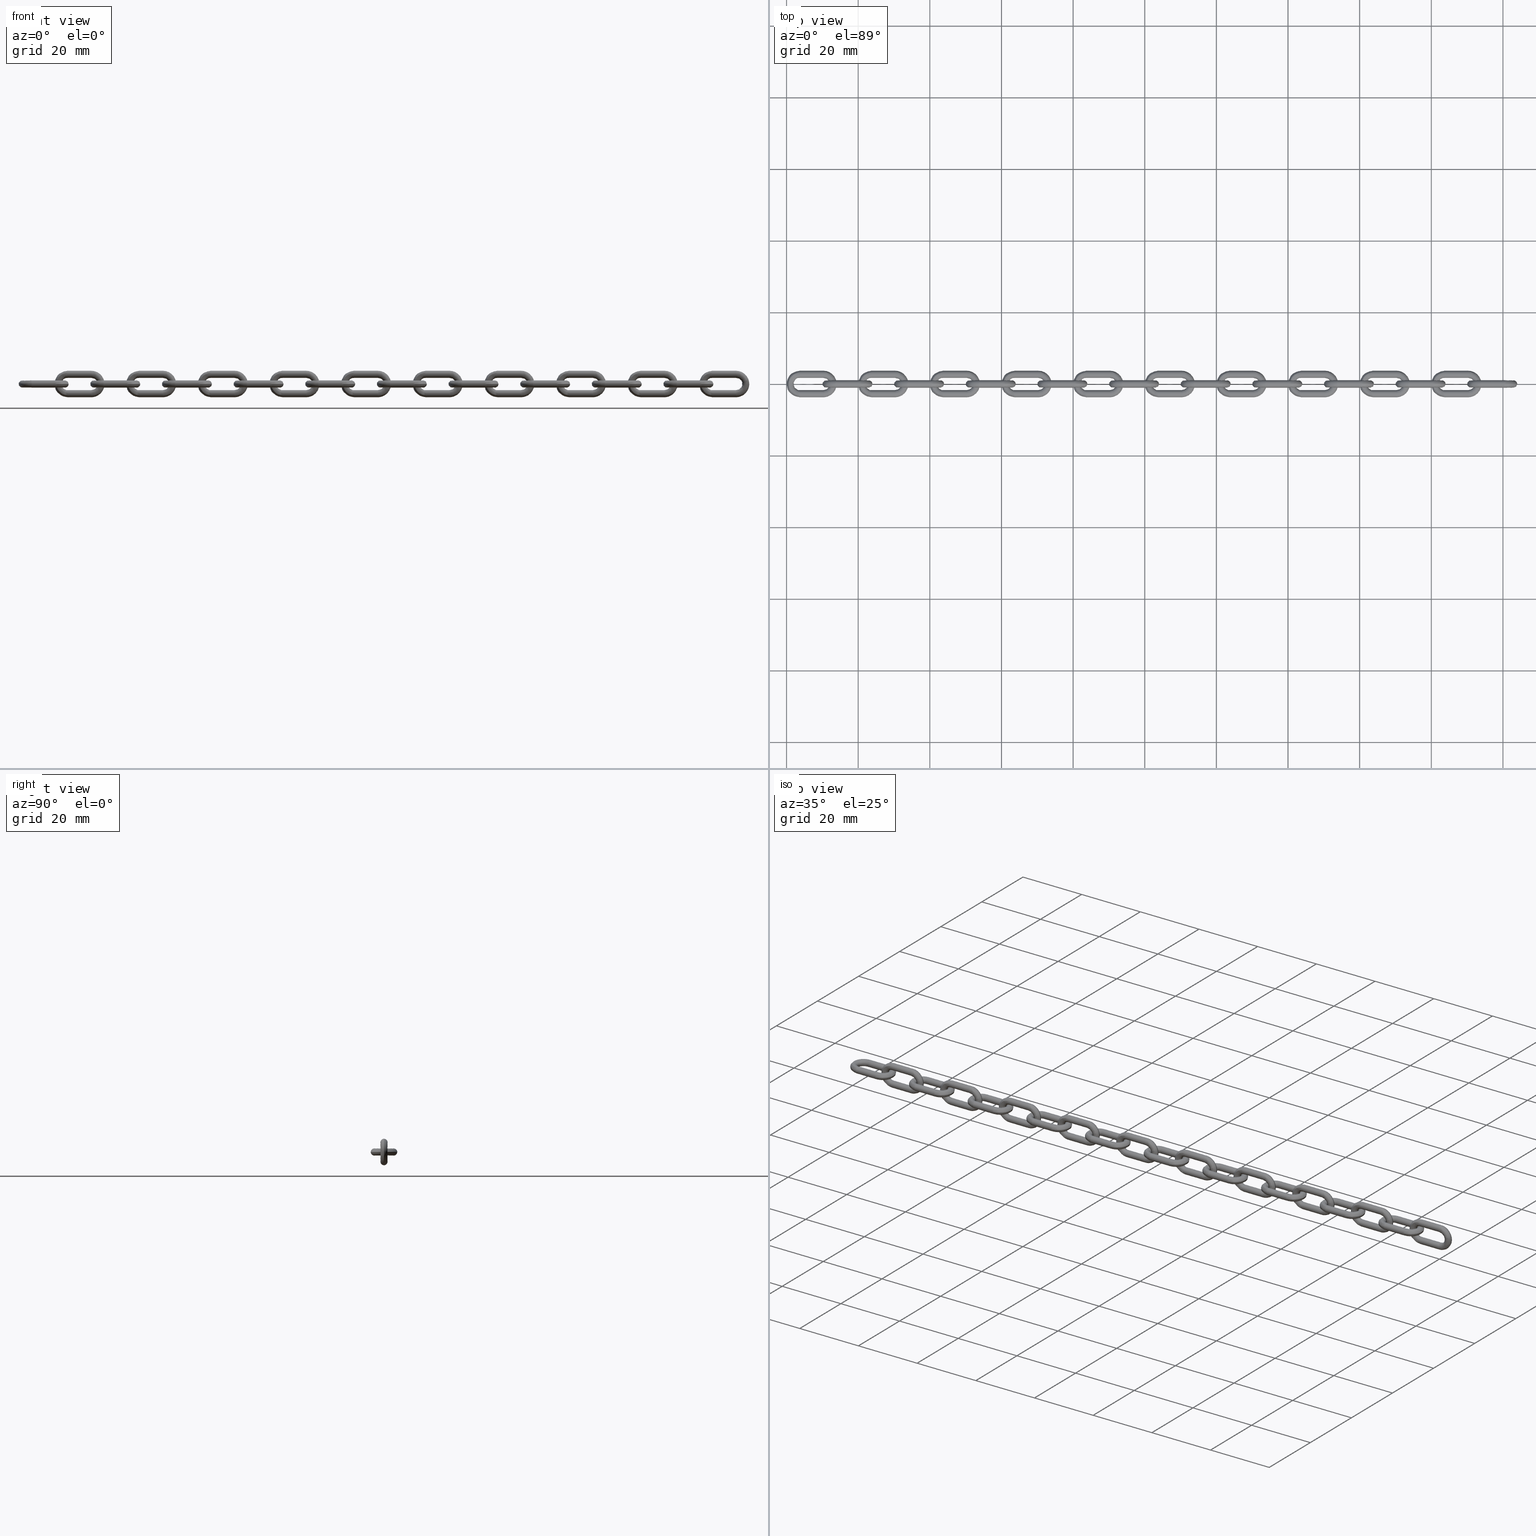
[diagram: canonical four-view strip — front | top / right | iso, engineering-drawing reading convention]
A machine part, canonical four-view strip (front | top / right | iso — engineering-drawing reading convention). The complete STEP part file that produces these views, byte-faithful:
ISO-10303-21;
HEADER;
/****************************************************************
 * Generated by software with PDE/Lib inside                    *
 * PDElib Version 4.4.1-0003, patched  Thursday August 19 11:58 *
 * International Technegroup Inc. (www.iti-oh.com)              *
 ****************************************************************/
FILE_DESCRIPTION((''),'2;1');
FILE_NAME('','2005-12-14T14:35:01',(''),(''),'','CADfix','');
FILE_SCHEMA(('AUTOMOTIVE_DESIGN'));
ENDSEC;
DATA;
#5=APPLICATION_CONTEXT('automotive design');
#6=APPLICATION_PROTOCOL_DEFINITION('Draft International Standard','automotive_design',1998,#5);
#7=PRODUCT_CONTEXT('None',#5,'mechanical');
#8=PRODUCT('chain','','None',(#7));
#9=PRODUCT_RELATED_PRODUCT_CATEGORY('part','description',(#8));
#10=PRODUCT_DEFINITION_FORMATION('None','None',#8);
#11=PRODUCT_DEFINITION_CONTEXT('part definition',#5,'design');
#12=PRODUCT_DEFINITION('None','None',#10,#11);
#18=(NAMED_UNIT(*)PLANE_ANGLE_UNIT()SI_UNIT($,.RADIAN.));
#19=DIMENSIONAL_EXPONENTS(0.0,0.0,0.0,0.0,0.0,0.0,0.0);
#20=PLANE_ANGLE_MEASURE_WITH_UNIT(PLANE_ANGLE_MEASURE(0.017453292500000),#18);
#24=(CONVERSION_BASED_UNIT('DEGREE',#20)NAMED_UNIT(#19)PLANE_ANGLE_UNIT());
#28=(NAMED_UNIT(*)SI_UNIT($,.STERADIAN.)SOLID_ANGLE_UNIT());
#32=(LENGTH_UNIT()NAMED_UNIT(*)SI_UNIT(.MILLI.,.METRE.));
#34=UNCERTAINTY_MEASURE_WITH_UNIT(LENGTH_MEASURE(0.001000000000000),#32,'DISTANCE_ACCURACY_VALUE','');
#36=(GEOMETRIC_REPRESENTATION_CONTEXT(3)GLOBAL_UNCERTAINTY_ASSIGNED_CONTEXT((#34))GLOBAL_UNIT_ASSIGNED_CONTEXT((#24,#28,#32))REPRESENTATION_CONTEXT('None','None'));
#37=AXIS2_PLACEMENT_3D('',#38,#39,#40);
#38=CARTESIAN_POINT('',(0.0,0.0,0.0));
#39=DIRECTION('',(0.0,0.0,1.0));
#40=DIRECTION('',(1.0,0.0,0.0));
#41=ADVANCED_BREP_SHAPE_REPRESENTATION('',(#37,#841,#881,#897,#913,#929,#945,#961,#977,#993,#1009,#1025,#1041,#1057,#1073,#1089,#1105,#1121,#1137,#1153,#1169,#1185),#36);
#42=PRODUCT_DEFINITION_SHAPE('','',#12);
#43=SHAPE_DEFINITION_REPRESENTATION(#42,#41);
#44=CARTESIAN_POINT('',(10.465000000059508,2.479622752936853,-0.975414716403678));
#45=CARTESIAN_POINT('',(10.465000000059510,2.202055588719912,-0.912703454725381));
#46=CARTESIAN_POINT('',(10.465000000059510,1.999090735700149,-0.713250449154181));
#47=CARTESIAN_POINT('',(10.465000000059510,1.285840286545968,-0.012341184854330));
#48=CARTESIAN_POINT('',(10.465000000059510,1.986749550845819,0.700909264299851));
#49=CARTESIAN_POINT('',(3.530874999948344,2.479622752936853,-0.975414716403678));
#50=CARTESIAN_POINT('',(3.530874999948344,2.202055588719912,-0.912703454725381));
#51=CARTESIAN_POINT('',(3.530874999948344,1.999090735700149,-0.713250449154181));
#52=CARTESIAN_POINT('',(3.530874999948344,1.285840286545968,-0.012341184854330));
#53=CARTESIAN_POINT('',(3.530874999948344,1.986749550845819,0.700909264299851));
#61=(BOUNDED_SURFACE()B_SPLINE_SURFACE(2,1,((#44,#49),(#45,#50),(#46,#51),(#47,#52),(#48,#53)),.UNSPECIFIED.,.F.,.F.,.U.)B_SPLINE_SURFACE_WITH_KNOTS((3,2,3),(2,2),(4.146902302738527,4.712388980384690,6.283185307179586),(0.0,6.934125000111167),.UNSPECIFIED.)GEOMETRIC_REPRESENTATION_ITEM()RATIONAL_B_SPLINE_SURFACE(((0.865034804770761,0.865034804770761),(0.894558441227157,0.894558441227157),(1.0,1.0),(0.707106781186548,0.707106781186548),(1.0,1.0)))REPRESENTATION_ITEM('')SURFACE());
#62=CARTESIAN_POINT('',(10.300000000000001,2.479622752920685,-0.975414716400026));
#63=VERTEX_POINT('',#62);
#64=CARTESIAN_POINT('',(10.300000000000001,1.986749521018376,0.700909233947221));
#65=VERTEX_POINT('',#64);
#66=CARTESIAN_POINT('',(10.300000000000001,2.479622752920684,-0.975414716400026));
#67=CARTESIAN_POINT('',(10.300000000000001,1.700000000000001,-0.799273108965178));
#68=CARTESIAN_POINT('',(10.300000000000001,1.700000000000000,-4.959656E-016));
#69=CARTESIAN_POINT('',(10.300000000000002,1.700000000000000,0.409110751749789));
#70=CARTESIAN_POINT('',(10.300000000000001,1.986749521018376,0.700909233947221));
#78=(BOUNDED_CURVE()B_SPLINE_CURVE(2,(#66,#67,#68,#69,#70),.UNSPECIFIED.,.F.,.U.)B_SPLINE_CURVE_WITH_KNOTS((3,2,3),(0.537700295055794,0.750000000000000,0.873683229566448),.UNSPECIFIED.)CURVE()GEOMETRIC_REPRESENTATION_ITEM()RATIONAL_B_SPLINE_CURVE((0.924984080856698,0.751275424262981,1.0,0.855096083116159,0.853569641568491))REPRESENTATION_ITEM(''));
#79=EDGE_CURVE('',#63,#65,#78,.T.);
#80=ORIENTED_EDGE('',*,*,#79,.T.);
#81=CARTESIAN_POINT('',(3.700000000000000,1.986749550935341,0.700909264390949));
#82=VERTEX_POINT('',#81);
#83=CARTESIAN_POINT('',(10.300000000000001,1.986749521018376,0.700909233947221));
#84=CARTESIAN_POINT('',(3.700000000000000,1.986749550935341,0.700909264390949));
#85=QUASI_UNIFORM_CURVE('',1,(#83,#84),.UNSPECIFIED.,.F.,.U.);
#86=EDGE_CURVE('',#65,#82,#85,.T.);
#87=ORIENTED_EDGE('',*,*,#86,.T.);
#88=CARTESIAN_POINT('',(3.700000000000000,1.700000000000000,4.959656E-016));
#89=VERTEX_POINT('',#88);
#90=CARTESIAN_POINT('',(3.700000000000000,1.986749550935341,0.700909264390949));
#91=CARTESIAN_POINT('',(3.700000000000000,1.700000000000000,0.409110801576810));
#92=CARTESIAN_POINT('',(3.700000000000000,1.700000000000000,4.959656E-016));
#100=(BOUNDED_CURVE()B_SPLINE_CURVE(2,(#90,#91,#92),.UNSPECIFIED.,.F.,.U.)B_SPLINE_CURVE_WITH_KNOTS((3,3),(0.376316757552547,0.500000000000000),.UNSPECIFIED.)CURVE()GEOMETRIC_REPRESENTATION_ITEM()RATIONAL_B_SPLINE_CURVE((0.853569641250550,0.855096068025123,1.0))REPRESENTATION_ITEM(''));
#101=EDGE_CURVE('',#82,#89,#100,.T.);
#102=ORIENTED_EDGE('',*,*,#101,.T.);
#103=CARTESIAN_POINT('',(3.699999999951054,2.381543632352666,-0.947937520042785));
#104=VERTEX_POINT('',#103);
#105=CARTESIAN_POINT('',(3.700000000000000,1.700000000000000,4.959656E-016));
#106=CARTESIAN_POINT('',(3.700000000000000,1.700000000000000,-0.718975267767966));
#107=CARTESIAN_POINT('',(3.699999999951055,2.381543632352666,-0.947937520042785));
#115=(BOUNDED_CURVE()B_SPLINE_CURVE(2,(#105,#106,#107),.UNSPECIFIED.,.F.,.U.)B_SPLINE_CURVE_WITH_KNOTS((3,3),(0.500000000000000,0.695865557687573),.UNSPECIFIED.)CURVE()GEOMETRIC_REPRESENTATION_ITEM()RATIONAL_B_SPLINE_CURVE((1.0,0.770529225416779,0.900621820727494))REPRESENTATION_ITEM(''));
#116=EDGE_CURVE('',#89,#104,#115,.T.);
#117=ORIENTED_EDGE('',*,*,#116,.T.);
#118=CARTESIAN_POINT('',(3.699999999976887,2.479622752925670,-0.975414716402953));
#119=VERTEX_POINT('',#118);
#120=CARTESIAN_POINT('',(3.699999999951054,2.381543632352667,-0.947937520042785));
#121=CARTESIAN_POINT('',(3.699999999966322,2.429882608721167,-0.964176833824920));
#122=CARTESIAN_POINT('',(3.699999999976888,2.479622752925670,-0.975414716402953));
#130=(BOUNDED_CURVE()B_SPLINE_CURVE(2,(#120,#121,#122),.UNSPECIFIED.,.F.,.U.)B_SPLINE_CURVE_WITH_KNOTS((3,3),(0.695865557687573,0.712299704940388),.UNSPECIFIED.)CURVE()GEOMETRIC_REPRESENTATION_ITEM()RATIONAL_B_SPLINE_CURVE((0.900621820727494,0.911537271575914,0.924984080850450))REPRESENTATION_ITEM(''));
#131=EDGE_CURVE('',#104,#119,#130,.T.);
#132=ORIENTED_EDGE('',*,*,#131,.T.);
#133=CARTESIAN_POINT('',(10.300000000000001,2.479622752920685,-0.975414716400026));
#134=CARTESIAN_POINT('',(3.699999999976887,2.479622752925670,-0.975414716402953));
#135=QUASI_UNIFORM_CURVE('',1,(#133,#134),.UNSPECIFIED.,.F.,.U.);
#136=EDGE_CURVE('',#63,#119,#135,.T.);
#137=ORIENTED_EDGE('',*,*,#136,.F.);
#138=EDGE_LOOP('',(#80,#87,#102,#117,#132,#137));
#139=FACE_OUTER_BOUND('',#138,.T.);
#140=ADVANCED_FACE('',(#139),#61,.T.);
#141=CARTESIAN_POINT('',(10.465000000059510,1.986749550845819,0.700909264299851));
#142=CARTESIAN_POINT('',(10.465000000059510,2.687658815145670,1.414159713454032));
#143=CARTESIAN_POINT('',(10.465000000059510,3.400909264299851,0.713250449154180));
#144=CARTESIAN_POINT('',(10.465000000059510,4.114159713454033,0.012341184854329));
#145=CARTESIAN_POINT('',(10.465000000059510,3.413250449154181,-0.700909264299852));
#146=CARTESIAN_POINT('',(10.465000000059510,3.022879429459638,-1.098153699943085));
#147=CARTESIAN_POINT('',(10.465000000059508,2.479622752936853,-0.975414716403678));
#148=CARTESIAN_POINT('',(3.530874999948344,1.986749550845819,0.700909264299851));
#149=CARTESIAN_POINT('',(3.530874999948344,2.687658815145670,1.414159713454032));
#150=CARTESIAN_POINT('',(3.530874999948344,3.400909264299851,0.713250449154180));
#151=CARTESIAN_POINT('',(3.530874999948344,4.114159713454033,0.012341184854329));
#152=CARTESIAN_POINT('',(3.530874999948344,3.413250449154181,-0.700909264299852));
#153=CARTESIAN_POINT('',(3.530874999948344,3.022879429459638,-1.098153699943085));
#154=CARTESIAN_POINT('',(3.530874999948344,2.479622752936853,-0.975414716403678));
#162=(BOUNDED_SURFACE()B_SPLINE_SURFACE(2,1,((#141,#148),(#142,#149),(#143,#150),(#144,#151),(#145,#152),(#146,#153),(#147,#154)),.UNSPECIFIED.,.F.,.F.,.U.)B_SPLINE_SURFACE_WITH_KNOTS((3,2,2,3),(2,2),(0.0,1.570796326794897,3.141592653589793,4.146902302738527),(0.0,6.934125000111167),.UNSPECIFIED.)GEOMETRIC_REPRESENTATION_ITEM()RATIONAL_B_SPLINE_SURFACE(((1.0,1.0),(0.707106781186548,0.707106781186548),(1.0,1.0),(0.707106781186548,0.707106781186548),(1.0,1.0),(0.812548339959390,0.812548339959390),(0.865034804770761,0.865034804770761)))REPRESENTATION_ITEM('')SURFACE());
#163=CARTESIAN_POINT('',(10.300000000000001,2.700000000000000,-1.0));
#164=VERTEX_POINT('',#163);
#165=CARTESIAN_POINT('',(10.300000000000001,2.700000000000000,-1.0));
#166=CARTESIAN_POINT('',(10.299999999999999,2.588440009449001,-1.000000000000000));
#167=CARTESIAN_POINT('',(10.300000000000001,2.479622752920684,-0.975414716400026));
#175=(BOUNDED_CURVE()B_SPLINE_CURVE(2,(#165,#166,#167),.UNSPECIFIED.,.F.,.U.)B_SPLINE_CURVE_WITH_KNOTS((3,3),(0.500000000000000,0.537700295055794),.UNSPECIFIED.)CURVE()GEOMETRIC_REPRESENTATION_ITEM()RATIONAL_B_SPLINE_CURVE((1.0,0.955831356923567,0.924984080856698))REPRESENTATION_ITEM(''));
#176=EDGE_CURVE('',#164,#63,#175,.T.);
#177=ORIENTED_EDGE('',*,*,#176,.T.);
#178=ORIENTED_EDGE('',*,*,#136,.T.);
#179=CARTESIAN_POINT('',(3.700000000000000,3.700000000000000,4.959656E-016));
#180=VERTEX_POINT('',#179);
#181=CARTESIAN_POINT('',(3.699999999976887,2.479622752925671,-0.975414716402953));
#182=CARTESIAN_POINT('',(3.700000000000001,2.588440009437179,-1.000000000000000));
#183=CARTESIAN_POINT('',(3.700000000000000,2.700000000000000,-1.000000000000000));
#184=CARTESIAN_POINT('',(3.700000000000000,3.700000000000000,-1.000000000000000));
#185=CARTESIAN_POINT('',(3.700000000000000,3.700000000000000,4.959656E-016));
#193=(BOUNDED_CURVE()B_SPLINE_CURVE(2,(#181,#182,#183,#184,#185),.UNSPECIFIED.,.F.,.U.)B_SPLINE_CURVE_WITH_KNOTS((3,2,3),(0.712299704940388,0.750000000000000,1.0),.UNSPECIFIED.)CURVE()GEOMETRIC_REPRESENTATION_ITEM()RATIONAL_B_SPLINE_CURVE((0.924984080850449,0.955831356919093,1.0,0.707106781186548,1.0))REPRESENTATION_ITEM(''));
#194=EDGE_CURVE('',#119,#180,#193,.T.);
#195=ORIENTED_EDGE('',*,*,#194,.T.);
#196=CARTESIAN_POINT('',(3.699999999982738,3.125779291612069,0.904827052443904));
#197=VERTEX_POINT('',#196);
#198=CARTESIAN_POINT('',(3.700000000000000,3.700000000000000,4.959656E-016));
#199=CARTESIAN_POINT('',(3.700000000000000,3.700000000000000,0.634619297471289));
#200=CARTESIAN_POINT('',(3.699999999982738,3.125779291612070,0.904827052443904));
#208=(BOUNDED_CURVE()B_SPLINE_CURVE(2,(#198,#199,#200),.UNSPECIFIED.,.F.,.U.)B_SPLINE_CURVE_WITH_KNOTS((3,3),(0.0,0.177668464620323),.UNSPECIFIED.)CURVE()GEOMETRIC_REPRESENTATION_ITEM()RATIONAL_B_SPLINE_CURVE((1.0,0.791848446062838,0.879552628096476))REPRESENTATION_ITEM(''));
#209=EDGE_CURVE('',#180,#197,#208,.T.);
#210=ORIENTED_EDGE('',*,*,#209,.T.);
#211=CARTESIAN_POINT('',(3.699999999982738,3.125779291612070,0.904827052443904));
#212=CARTESIAN_POINT('',(3.700000000000000,2.923526482951685,1.000000000000000));
#213=CARTESIAN_POINT('',(3.700000000000000,2.700000000000000,1.0));
#214=CARTESIAN_POINT('',(3.700000000000001,2.280665198391793,1.000000000000000));
#215=CARTESIAN_POINT('',(3.700000000000000,1.986749550935341,0.700909264390949));
#223=(BOUNDED_CURVE()B_SPLINE_CURVE(2,(#211,#212,#213,#214,#215),.UNSPECIFIED.,.F.,.U.)B_SPLINE_CURVE_WITH_KNOTS((3,2,3),(0.177668464620323,0.250000000000000,0.376316757552547),.UNSPECIFIED.)CURVE()GEOMETRIC_REPRESENTATION_ITEM()RATIONAL_B_SPLINE_CURVE((0.879552628096476,0.915258335123709,1.0,0.852010713161424,0.853569641250550))REPRESENTATION_ITEM(''));
#224=EDGE_CURVE('',#197,#82,#223,.T.);
#225=ORIENTED_EDGE('',*,*,#224,.T.);
#226=ORIENTED_EDGE('',*,*,#86,.F.);
#227=CARTESIAN_POINT('',(10.300000000000001,2.700000000000000,1.000000000000000));
#228=VERTEX_POINT('',#227);
#229=CARTESIAN_POINT('',(10.300000000000001,1.986749521018376,0.700909233947221));
#230=CARTESIAN_POINT('',(10.300000000000001,2.280665148203250,0.999999999999999));
#231=CARTESIAN_POINT('',(10.300000000000001,2.700000000000000,1.000000000000000));
#239=(BOUNDED_CURVE()B_SPLINE_CURVE(2,(#229,#230,#231),.UNSPECIFIED.,.F.,.U.)B_SPLINE_CURVE_WITH_KNOTS((3,3),(0.873683229566449,1.0),.UNSPECIFIED.)CURVE()GEOMETRIC_REPRESENTATION_ITEM()RATIONAL_B_SPLINE_CURVE((0.853569641568491,0.852010698070389,1.0))REPRESENTATION_ITEM(''));
#240=EDGE_CURVE('',#65,#228,#239,.T.);
#241=ORIENTED_EDGE('',*,*,#240,.T.);
#242=CARTESIAN_POINT('',(10.299994598638600,3.699999999992104,0.000000098425601));
#243=VERTEX_POINT('',#242);
#244=CARTESIAN_POINT('',(10.300000000000001,2.700000000000000,1.000000000000000));
#245=CARTESIAN_POINT('',(10.299997299319301,3.699999901570456,0.999999999999999));
#246=CARTESIAN_POINT('',(10.299994598638596,3.699999999992104,0.000000098425601));
#254=(BOUNDED_CURVE()B_SPLINE_CURVE(2,(#244,#245,#246),.UNSPECIFIED.,.F.,.U.)B_SPLINE_CURVE_WITH_KNOTS((3,3),(0.0,0.249999982600647),.UNSPECIFIED.)CURVE()GEOMETRIC_REPRESENTATION_ITEM()RATIONAL_B_SPLINE_CURVE((1.0,0.707106801571157,0.999999959230784))REPRESENTATION_ITEM(''));
#255=EDGE_CURVE('',#228,#243,#254,.T.);
#256=ORIENTED_EDGE('',*,*,#255,.T.);
#257=CARTESIAN_POINT('',(10.300000000056860,3.053301966804189,-0.935509337341050));
#258=VERTEX_POINT('',#257);
#259=CARTESIAN_POINT('',(10.299994598638603,3.699999999992106,0.000000098425601));
#260=CARTESIAN_POINT('',(10.299997299347730,3.700000067963567,-0.691279053306250));
#261=CARTESIAN_POINT('',(10.300000000056864,3.053301966804189,-0.935509337341050));
#269=(BOUNDED_CURVE()B_SPLINE_CURVE(2,(#259,#260,#261),.UNSPECIFIED.,.F.,.U.)B_SPLINE_CURVE_WITH_KNOTS((3,3),(0.249999982600647,0.439999999951363),.UNSPECIFIED.)CURVE()GEOMETRIC_REPRESENTATION_ITEM()RATIONAL_B_SPLINE_CURVE((1.000000040769222,0.777401143158761,0.893152553717591))REPRESENTATION_ITEM(''));
#270=EDGE_CURVE('',#243,#258,#269,.T.);
#271=ORIENTED_EDGE('',*,*,#270,.T.);
#272=CARTESIAN_POINT('',(10.300000000056864,3.053301966804189,-0.935509337341050));
#273=CARTESIAN_POINT('',(10.300000000000001,2.882536947842148,-1.000000000000000));
#274=CARTESIAN_POINT('',(10.300000000000001,2.700000000000000,-1.0));
#282=(BOUNDED_CURVE()B_SPLINE_CURVE(2,(#272,#273,#274),.UNSPECIFIED.,.F.,.U.)B_SPLINE_CURVE_WITH_KNOTS((3,3),(0.439999999951363,0.500000000000000),.UNSPECIFIED.)CURVE()GEOMETRIC_REPRESENTATION_ITEM()RATIONAL_B_SPLINE_CURVE((0.893152553717592,0.929705627427790,1.0))REPRESENTATION_ITEM(''));
#283=EDGE_CURVE('',#258,#164,#282,.T.);
#284=ORIENTED_EDGE('',*,*,#283,.T.);
#285=EDGE_LOOP('',(#177,#178,#195,#210,#225,#226,#241,#256,#271,#284));
#286=FACE_OUTER_BOUND('',#285,.T.);
#287=ADVANCED_FACE('',(#286),#162,.T.);
#288=CARTESIAN_POINT('',(10.465000000047821,-1.721748912259308,0.207424225523807));
#289=CARTESIAN_POINT('',(10.465000000047819,-1.614983799948065,-0.296099830007706));
#290=CARTESIAN_POINT('',(10.465000000047819,-1.962722663189877,-0.675590207615660));
#291=CARTESIAN_POINT('',(10.465000000047819,-2.638312870805537,-1.412867544425783));
#292=CARTESIAN_POINT('',(10.465000000047819,-3.375590207615661,-0.737277336810123));
#293=CARTESIAN_POINT('',(10.465000000047819,-4.112867544425784,-0.061687129194463));
#294=CARTESIAN_POINT('',(10.465000000047819,-3.437277336810124,0.675590207615661));
#295=CARTESIAN_POINT('',(10.465000000047819,-2.761687129194463,1.412867544425784));
#296=CARTESIAN_POINT('',(10.465000000047819,-2.024409792384340,0.737277336810124));
#297=CARTESIAN_POINT('',(3.530874999998805,-1.721748912259308,0.207424225523807));
#298=CARTESIAN_POINT('',(3.530874999998805,-1.614983799948065,-0.296099830007706));
#299=CARTESIAN_POINT('',(3.530874999998804,-1.962722663189877,-0.675590207615660));
#300=CARTESIAN_POINT('',(3.530874999998803,-2.638312870805537,-1.412867544425783));
#301=CARTESIAN_POINT('',(3.530874999998804,-3.375590207615661,-0.737277336810123));
#302=CARTESIAN_POINT('',(3.530874999998803,-4.112867544425784,-0.061687129194463));
#303=CARTESIAN_POINT('',(3.530874999998804,-3.437277336810124,0.675590207615661));
#304=CARTESIAN_POINT('',(3.530874999998803,-2.761687129194463,1.412867544425784));
#305=CARTESIAN_POINT('',(3.530874999998804,-2.024409792384340,0.737277336810124));
#313=(BOUNDED_SURFACE()B_SPLINE_SURFACE(2,1,((#288,#297),(#289,#298),(#290,#299),(#291,#300),(#292,#301),(#293,#302),(#294,#303),(#295,#304),(#296,#305)),.UNSPECIFIED.,.F.,.F.,.U.)B_SPLINE_SURFACE_WITH_KNOTS((3,2,2,2,3),(2,2),(0.628318530717959,1.570796326794897,3.141592653589793,4.712388980384690,6.283185307179586),(0.0,6.934125000049018),.UNSPECIFIED.)GEOMETRIC_REPRESENTATION_ITEM()RATIONAL_B_SPLINE_SURFACE(((0.859411254969543,0.859411254969543),(0.824264068711928,0.824264068711928),(1.0,1.0),(0.707106781186548,0.707106781186548),(1.0,1.0),(0.707106781186548,0.707106781186548),(1.0,1.0),(0.707106781186548,0.707106781186548),(1.0,1.0)))REPRESENTATION_ITEM('')SURFACE());
#314=CARTESIAN_POINT('',(3.700000000000000,-1.721748912260051,0.207424225527314));
#315=VERTEX_POINT('',#314);
#316=CARTESIAN_POINT('',(3.700000000000000,-1.700000000000000,4.959656E-016));
#317=VERTEX_POINT('',#316);
#318=CARTESIAN_POINT('',(3.700000000000000,-1.721748912260051,0.207424225527314));
#319=CARTESIAN_POINT('',(3.700000000000000,-1.700000000000000,0.104852324771307));
#320=CARTESIAN_POINT('',(3.700000000000000,-1.700000000000000,4.959656E-016));
#328=(BOUNDED_CURVE()B_SPLINE_CURVE(2,(#318,#319,#320),.UNSPECIFIED.,.F.,.U.)B_SPLINE_CURVE_WITH_KNOTS((3,3),(0.464472125252115,0.500000000000000),.UNSPECIFIED.)CURVE()GEOMETRIC_REPRESENTATION_ITEM()RATIONAL_B_SPLINE_CURVE((0.928583365616311,0.958376505629963,1.0))REPRESENTATION_ITEM(''));
#329=EDGE_CURVE('',#315,#317,#328,.T.);
#330=ORIENTED_EDGE('',*,*,#329,.F.);
#331=CARTESIAN_POINT('',(10.300000000000001,-1.721748912260051,0.207424225527314));
#332=VERTEX_POINT('',#331);
#333=CARTESIAN_POINT('',(10.300000000000001,-1.721748912260051,0.207424225527314));
#334=CARTESIAN_POINT('',(3.700000000000000,-1.721748912260051,0.207424225527314));
#335=QUASI_UNIFORM_CURVE('',1,(#333,#334),.UNSPECIFIED.,.F.,.U.);
#336=EDGE_CURVE('',#332,#315,#335,.T.);
#337=ORIENTED_EDGE('',*,*,#336,.F.);
#338=CARTESIAN_POINT('',(10.300000000000001,-2.700000000000000,-1.000000000000000));
#339=VERTEX_POINT('',#338);
#340=CARTESIAN_POINT('',(10.300000000000001,-1.721748912260051,0.207424225527314));
#341=CARTESIAN_POINT('',(10.300000000000001,-1.700000000000000,0.104852324771307));
#342=CARTESIAN_POINT('',(10.300000000000001,-1.700000000000000,4.959656E-016));
#343=CARTESIAN_POINT('',(10.300000000000001,-1.700000000000000,-1.000000000000000));
#344=CARTESIAN_POINT('',(10.300000000000001,-2.700000000000000,-1.000000000000000));
#352=(BOUNDED_CURVE()B_SPLINE_CURVE(2,(#340,#341,#342,#343,#344),.UNSPECIFIED.,.F.,.U.)B_SPLINE_CURVE_WITH_KNOTS((3,2,3),(0.214472125252115,0.250000000000000,0.500000000000000),.UNSPECIFIED.)CURVE()GEOMETRIC_REPRESENTATION_ITEM()RATIONAL_B_SPLINE_CURVE((0.928583365616311,0.958376505629963,1.0,0.707106781186548,1.0))REPRESENTATION_ITEM(''));
#353=EDGE_CURVE('',#332,#339,#352,.T.);
#354=ORIENTED_EDGE('',*,*,#353,.T.);
#355=CARTESIAN_POINT('',(10.300000000046650,-3.053301966794579,-0.935509337344679));
#356=VERTEX_POINT('',#355);
#357=CARTESIAN_POINT('',(10.300000000000001,-2.700000000000000,-1.000000000000000));
#358=CARTESIAN_POINT('',(10.300000000000001,-2.882536947831531,-1.000000000000000));
#359=CARTESIAN_POINT('',(10.300000000046653,-3.053301966794579,-0.935509337344679));
#367=(BOUNDED_CURVE()B_SPLINE_CURVE(2,(#357,#358,#359),.UNSPECIFIED.,.F.,.U.)B_SPLINE_CURVE_WITH_KNOTS((3,3),(0.500000000000000,0.560000000045393),.UNSPECIFIED.)CURVE()GEOMETRIC_REPRESENTATION_ITEM()RATIONAL_B_SPLINE_CURVE((1.0,0.929705627431591,0.893152553721545))REPRESENTATION_ITEM(''));
#368=EDGE_CURVE('',#339,#356,#367,.T.);
#369=ORIENTED_EDGE('',*,*,#368,.T.);
#370=CARTESIAN_POINT('',(10.299998840299670,-3.699999999999636,-0.000000021523782));
#371=VERTEX_POINT('',#370);
#372=CARTESIAN_POINT('',(10.300000000046653,-3.053301966794579,-0.935509337344679));
#373=CARTESIAN_POINT('',(10.299999420173160,-3.699999985053639,-0.691279084634400));
#374=CARTESIAN_POINT('',(10.299998840299667,-3.699999999999636,-0.000000021523782));
#382=(BOUNDED_CURVE()B_SPLINE_CURVE(2,(#372,#373,#374),.UNSPECIFIED.,.F.,.U.)B_SPLINE_CURVE_WITH_KNOTS((3,3),(0.560000000045393,0.749999996195097),.UNSPECIFIED.)CURVE()GEOMETRIC_REPRESENTATION_ITEM()RATIONAL_B_SPLINE_CURVE((0.893152553721544,0.777401156072972,0.999999991084558))REPRESENTATION_ITEM(''));
#383=EDGE_CURVE('',#356,#371,#382,.T.);
#384=ORIENTED_EDGE('',*,*,#383,.T.);
#385=CARTESIAN_POINT('',(10.300000000000001,-2.700000000000000,1.0));
#386=VERTEX_POINT('',#385);
#387=CARTESIAN_POINT('',(10.299998840299667,-3.699999999999635,-0.000000021523782));
#388=CARTESIAN_POINT('',(10.299999420149833,-3.700000021523601,1.000000000000000));
#389=CARTESIAN_POINT('',(10.300000000000001,-2.700000000000000,1.0));
#397=(BOUNDED_CURVE()B_SPLINE_CURVE(2,(#387,#388,#389),.UNSPECIFIED.,.F.,.U.)B_SPLINE_CURVE_WITH_KNOTS((3,3),(0.749999996195097,1.0),.UNSPECIFIED.)CURVE()GEOMETRIC_REPRESENTATION_ITEM()RATIONAL_B_SPLINE_CURVE((1.000000008915443,0.707106776728826,1.0))REPRESENTATION_ITEM(''));
#398=EDGE_CURVE('',#371,#386,#397,.T.);
#399=ORIENTED_EDGE('',*,*,#398,.T.);
#400=CARTESIAN_POINT('',(10.300000000000001,-2.024410005481138,0.737277532077250));
#401=VERTEX_POINT('',#400);
#402=CARTESIAN_POINT('',(10.300000000000001,-2.700000000000000,1.0));
#403=CARTESIAN_POINT('',(10.299999999999999,-2.311121600888317,1.000000000000000));
#404=CARTESIAN_POINT('',(10.300000000000002,-2.024410005481137,0.737277532077250));
#412=(BOUNDED_CURVE()B_SPLINE_CURVE(2,(#402,#403,#404),.UNSPECIFIED.,.F.,.U.)B_SPLINE_CURVE_WITH_KNOTS((3,3),(0.0,0.118415121819422),.UNSPECIFIED.)CURVE()GEOMETRIC_REPRESENTATION_ITEM()RATIONAL_B_SPLINE_CURVE((1.0,0.861268055256490,0.853959791609364))REPRESENTATION_ITEM(''));
#413=EDGE_CURVE('',#386,#401,#412,.T.);
#414=ORIENTED_EDGE('',*,*,#413,.T.);
#415=CARTESIAN_POINT('',(3.700000000000000,-2.024410008143436,0.737277534516794));
#416=VERTEX_POINT('',#415);
#417=CARTESIAN_POINT('',(10.300000000000001,-2.024410005481138,0.737277532077250));
#418=CARTESIAN_POINT('',(3.700000000000000,-2.024410008143436,0.737277534516794));
#419=QUASI_UNIFORM_CURVE('',1,(#417,#418),.UNSPECIFIED.,.F.,.U.);
#420=EDGE_CURVE('',#401,#416,#419,.T.);
#421=ORIENTED_EDGE('',*,*,#420,.T.);
#422=CARTESIAN_POINT('',(3.700000000030935,-3.125779291666980,0.904827052418066));
#423=VERTEX_POINT('',#422);
#424=CARTESIAN_POINT('',(3.700000000030935,-3.125779291666980,0.904827052418066));
#425=CARTESIAN_POINT('',(3.700000000000001,-2.923526483015403,1.000000000000000));
#426=CARTESIAN_POINT('',(3.700000000000000,-2.700000000000000,1.0));
#427=CARTESIAN_POINT('',(3.700000000000000,-2.311121605045376,1.000000000000000));
#428=CARTESIAN_POINT('',(3.700000000000000,-2.024410008143436,0.737277534516794));
#436=(BOUNDED_CURVE()B_SPLINE_CURVE(2,(#424,#425,#426,#427,#428),.UNSPECIFIED.,.F.,.U.)B_SPLINE_CURVE_WITH_KNOTS((3,2,3),(0.177668464601452,0.250000000000000,0.368415120729192),.UNSPECIFIED.)CURVE()GEOMETRIC_REPRESENTATION_ITEM()RATIONAL_B_SPLINE_CURVE((0.879552628077845,0.915258335101600,1.0,0.861268056533773,0.853959791743936))REPRESENTATION_ITEM(''));
#437=EDGE_CURVE('',#423,#416,#436,.T.);
#438=ORIENTED_EDGE('',*,*,#437,.F.);
#439=CARTESIAN_POINT('',(3.700000000000000,-3.700000000000000,4.959656E-016));
#440=VERTEX_POINT('',#439);
#441=CARTESIAN_POINT('',(3.700000000000000,-3.700000000000000,4.959656E-016));
#442=CARTESIAN_POINT('',(3.700000000000000,-3.700000000000000,0.634619297386164));
#443=CARTESIAN_POINT('',(3.700000000030935,-3.125779291666980,0.904827052418066));
#451=(BOUNDED_CURVE()B_SPLINE_CURVE(2,(#441,#442,#443),.UNSPECIFIED.,.F.,.U.)B_SPLINE_CURVE_WITH_KNOTS((3,3),(0.0,0.177668464601452),.UNSPECIFIED.)CURVE()GEOMETRIC_REPRESENTATION_ITEM()RATIONAL_B_SPLINE_CURVE((1.0,0.791848446084947,0.879552628077845))REPRESENTATION_ITEM(''));
#452=EDGE_CURVE('',#440,#423,#451,.T.);
#453=ORIENTED_EDGE('',*,*,#452,.F.);
#454=CARTESIAN_POINT('',(3.700000000036332,-2.381543632344835,-0.947937520040154));
#455=VERTEX_POINT('',#454);
#456=CARTESIAN_POINT('',(3.700000000036332,-2.381543632344835,-0.947937520040154));
#457=CARTESIAN_POINT('',(3.700000000000000,-2.536516128232886,-1.000000000000000));
#458=CARTESIAN_POINT('',(3.700000000000000,-2.700000000000000,-1.000000000000000));
#459=CARTESIAN_POINT('',(3.700000000000000,-3.700000000000000,-1.000000000000000));
#460=CARTESIAN_POINT('',(3.700000000000000,-3.700000000000000,4.959656E-016));
#468=(BOUNDED_CURVE()B_SPLINE_CURVE(2,(#456,#457,#458,#459,#460),.UNSPECIFIED.,.F.,.U.)B_SPLINE_CURVE_WITH_KNOTS((3,2,3),(0.695865557684942,0.750000000000000,1.0),.UNSPECIFIED.)CURVE()GEOMETRIC_REPRESENTATION_ITEM()RATIONAL_B_SPLINE_CURVE((0.900621820723999,0.936577555766686,1.0,0.707106781186548,1.0))REPRESENTATION_ITEM(''));
#469=EDGE_CURVE('',#455,#440,#468,.T.);
#470=ORIENTED_EDGE('',*,*,#469,.F.);
#471=CARTESIAN_POINT('',(3.700000000000000,-1.700000000000000,4.959656E-016));
#472=CARTESIAN_POINT('',(3.700000000000000,-1.700000000000001,-0.718975267755431));
#473=CARTESIAN_POINT('',(3.700000000036332,-2.381543632344835,-0.947937520040154));
#481=(BOUNDED_CURVE()B_SPLINE_CURVE(2,(#471,#472,#473),.UNSPECIFIED.,.F.,.U.)B_SPLINE_CURVE_WITH_KNOTS((3,3),(0.500000000000000,0.695865557684942),.UNSPECIFIED.)CURVE()GEOMETRIC_REPRESENTATION_ITEM()RATIONAL_B_SPLINE_CURVE((1.0,0.770529225419861,0.900621820723999))REPRESENTATION_ITEM(''));
#482=EDGE_CURVE('',#317,#455,#481,.T.);
#483=ORIENTED_EDGE('',*,*,#482,.F.);
#484=EDGE_LOOP('',(#330,#337,#354,#369,#384,#399,#414,#421,#438,#453,#470,#483));
#485=FACE_OUTER_BOUND('',#484,.T.);
#486=ADVANCED_FACE('',(#485),#313,.T.);
#487=CARTESIAN_POINT('',(10.465000000047819,-2.026492903623107,0.739186156577152));
#488=CARTESIAN_POINT('',(10.465000000047821,-2.025451957839038,0.738232305504748));
#489=CARTESIAN_POINT('',(10.465000000047821,-1.788202913352721,0.520833610036089));
#490=CARTESIAN_POINT('',(10.465000000047821,-1.721407536357173,0.205814233505041));
#491=CARTESIAN_POINT('',(10.465000000047823,-1.721066067355019,0.204203802409335));
#492=CARTESIAN_POINT('',(3.530874999998804,-2.026492903623107,0.739186156577152));
#493=CARTESIAN_POINT('',(3.530874999998805,-2.025451957839038,0.738232305504748));
#494=CARTESIAN_POINT('',(3.530874999998804,-1.788202913352721,0.520833610036089));
#495=CARTESIAN_POINT('',(3.530874999998804,-1.721407536357173,0.205814233505041));
#496=CARTESIAN_POINT('',(3.530874999998805,-1.721066067355019,0.204203802409335));
#504=(BOUNDED_SURFACE()B_SPLINE_SURFACE(2,1,((#487,#492),(#488,#493),(#489,#494),(#490,#495),(#491,#496)),.UNSPECIFIED.,.F.,.F.,.U.)B_SPLINE_SURFACE_WITH_KNOTS((3,1,1,3),(2,2),(0.0,0.003293259494930,0.661876692222431,0.665169611012368),(0.0,6.934125000049018),.UNSPECIFIED.)GEOMETRIC_REPRESENTATION_ITEM()RATIONAL_B_SPLINE_SURFACE(((1.001171694671836,1.001171694671836),(1.000585847335918,1.000585847335918),(0.882842712474619,0.882842712474619),(0.859294097624156,0.859294097624156),(0.859176940278769,0.859176940278769)))REPRESENTATION_ITEM('')SURFACE());
#505=CARTESIAN_POINT('',(3.700000000000000,-2.024410008143436,0.737277534516794));
#506=CARTESIAN_POINT('',(3.700000000000000,-1.788202980287357,0.520833925701162));
#507=CARTESIAN_POINT('',(3.700000000000000,-1.721748912260051,0.207424225527314));
#515=(BOUNDED_CURVE()B_SPLINE_CURVE(2,(#505,#506,#507),.UNSPECIFIED.,.F.,.U.)B_SPLINE_CURVE_WITH_KNOTS((3,3),(0.368415120729192,0.464472125252116),.UNSPECIFIED.)CURVE()GEOMETRIC_REPRESENTATION_ITEM()RATIONAL_B_SPLINE_CURVE((0.853959791743936,0.848031410134821,0.928583365616311))REPRESENTATION_ITEM(''));
#516=EDGE_CURVE('',#416,#315,#515,.T.);
#517=ORIENTED_EDGE('',*,*,#516,.F.);
#518=ORIENTED_EDGE('',*,*,#420,.F.);
#519=CARTESIAN_POINT('',(10.300000000000001,-2.024410005481138,0.737277532077250));
#520=CARTESIAN_POINT('',(10.300000000000002,-1.788202979461472,0.520833921806137));
#521=CARTESIAN_POINT('',(10.299999999999999,-1.721748912260050,0.207424225527314));
#529=(BOUNDED_CURVE()B_SPLINE_CURVE(2,(#519,#520,#521),.UNSPECIFIED.,.F.,.U.)B_SPLINE_CURVE_WITH_KNOTS((3,3),(0.118415121819422,0.214472125252115),.UNSPECIFIED.)CURVE()GEOMETRIC_REPRESENTATION_ITEM()RATIONAL_B_SPLINE_CURVE((0.853959791609364,0.848031411049071,0.928583365616310))REPRESENTATION_ITEM(''));
#530=EDGE_CURVE('',#401,#332,#529,.T.);
#531=ORIENTED_EDGE('',*,*,#530,.T.);
#532=ORIENTED_EDGE('',*,*,#336,.T.);
#533=EDGE_LOOP('',(#517,#518,#531,#532));
#534=FACE_OUTER_BOUND('',#533,.T.);
#535=ADVANCED_FACE('',(#534),#504,.T.);
#536=CARTESIAN_POINT('',(9.868209018926198,3.022616325019393,-0.935509337395466));
#537=CARTESIAN_POINT('',(13.375502243530230,3.523645043030952,-0.935509337395466));
#538=CARTESIAN_POINT('',(13.353241697093319,-0.019184335826851,-0.935509337395466));
#539=CARTESIAN_POINT('',(13.331246290498399,-3.519815953532022,-0.935509337395466));
#540=CARTESIAN_POINT('',(9.866077548297550,-3.022311070277010,-0.935509337395466));
#541=CARTESIAN_POINT('',(9.892358217361972,2.853567492071155,-0.999999999999999));
#542=CARTESIAN_POINT('',(13.203495607856700,3.326574684706723,-0.999999999999999));
#543=CARTESIAN_POINT('',(13.182480048871492,-0.018111394628336,-0.999999999999999));
#544=CARTESIAN_POINT('',(13.161714800991822,-3.322959748458304,-0.999999999999999));
#545=CARTESIAN_POINT('',(9.890345955585357,-2.853279309610665,-0.999999999999999));
#546=CARTESIAN_POINT('',(9.918172175032355,2.672865038134262,-0.999999999999999));
#547=CARTESIAN_POINT('',(13.019631450869863,3.115919001811150,-0.999999999999999));
#548=CARTESIAN_POINT('',(12.999946704311570,-0.016964488707010,-0.999999999999999));
#549=CARTESIAN_POINT('',(12.980496417882398,-3.112532981771208,-0.999999999999999));
#550=CARTESIAN_POINT('',(9.916287339939006,-2.672595104857621,-0.999999999999999));
#551=CARTESIAN_POINT('',(10.059589887983337,1.682915024010461,-0.999999999999999));
#552=CARTESIAN_POINT('',(12.012360543140280,1.961874927066279,-0.999999999999999));
#553=CARTESIAN_POINT('',(11.999966443455433,-0.010681344741452,-0.999999999999999));
#554=CARTESIAN_POINT('',(11.987719966814849,-1.959742988522613,-0.999999999999999));
#555=CARTESIAN_POINT('',(10.058403139961596,-1.682745066021467,-0.999999999999999));
#556=CARTESIAN_POINT('',(10.059589887983334,1.682915024010460,3.735049E-016));
#557=CARTESIAN_POINT('',(12.012360543140284,1.961874927066280,3.735049E-016));
#558=CARTESIAN_POINT('',(11.999966443455429,-0.010681344741452,3.735049E-016));
#559=CARTESIAN_POINT('',(11.987719966814844,-1.959742988522613,3.735049E-016));
#560=CARTESIAN_POINT('',(10.058403139961596,-1.682745066021466,3.735049E-016));
#561=CARTESIAN_POINT('',(10.059589887983337,1.682915024010460,1.000000000000000));
#562=CARTESIAN_POINT('',(12.012360543140280,1.961874927066279,1.000000000000000));
#563=CARTESIAN_POINT('',(11.999966443455433,-0.010681344741452,1.000000000000000));
#564=CARTESIAN_POINT('',(11.987719966814849,-1.959742988522613,1.0));
#565=CARTESIAN_POINT('',(10.058403139961596,-1.682745066021465,1.000000000000000));
#566=CARTESIAN_POINT('',(9.918172175032355,2.672865038134262,1.000000000000000));
#567=CARTESIAN_POINT('',(13.019631450869863,3.115919001811150,1.000000000000000));
#568=CARTESIAN_POINT('',(12.999946704311570,-0.016964488707010,1.0));
#569=CARTESIAN_POINT('',(12.980496417882398,-3.112532981771208,1.000000000000000));
#570=CARTESIAN_POINT('',(9.916287339939006,-2.672595104857621,1.000000000000000));
#571=CARTESIAN_POINT('',(9.776754462081374,3.662815052258062,1.000000000000000));
#572=CARTESIAN_POINT('',(14.026902358599436,4.269963076556022,1.000000000000000));
#573=CARTESIAN_POINT('',(13.999926965167706,-0.023247632672569,1.000000000000000));
#574=CARTESIAN_POINT('',(13.973272868949952,-4.265322975019803,1.000000000000001));
#575=CARTESIAN_POINT('',(9.774171539916415,-3.662445143693778,1.000000000000001));
#576=CARTESIAN_POINT('',(9.776754462081374,3.662815052258063,7.408868E-016));
#577=CARTESIAN_POINT('',(14.026902358599441,4.269963076556023,7.408868E-016));
#578=CARTESIAN_POINT('',(13.999926965167710,-0.023247632672569,7.408868E-016));
#579=CARTESIAN_POINT('',(13.973272868949953,-4.265322975019802,7.408868E-016));
#580=CARTESIAN_POINT('',(9.774171539916416,-3.662445143693776,7.408868E-016));
#588=(BOUNDED_SURFACE()B_SPLINE_SURFACE(2,2,((#536,#541,#546,#551,#556,#561,#566,#571,#576),(#537,#542,#547,#552,#557,#562,#567,#572,#577),(#538,#543,#548,#553,#558,#563,#568,#573,#578),(#539,#544,#549,#554,#559,#564,#569,#574,#579),(#540,#545,#550,#555,#560,#565,#570,#575,#580)),.UNSPECIFIED.,.F.,.F.,.U.)B_SPLINE_SURFACE_WITH_KNOTS((3,2,3),(3,2,2,2,3),(0.0,6.782948011843551,13.513178000703929),(0.0,0.397645019878172,2.054499269370554,3.711353518862935,5.368207768355317),.UNSPECIFIED.)GEOMETRIC_REPRESENTATION_ITEM()RATIONAL_B_SPLINE_SURFACE(((0.884916744763006,0.921132760559984,0.990778944784942,0.700586510514284,0.990778944784942,0.700586510514284,0.990778944784942,0.700586510514284,0.990778944784942),(0.580379221256333,0.604131764271988,0.649809731609788,0.459484867702291,0.649809731609788,0.459484867702291,0.649809731609788,0.459484867702291,0.649809731609788),(0.893152553776853,0.929705627484771,1.0,0.707106781186548,1.0,0.707106781186548,1.0,0.707106781186548,1.0),(0.582810139450538,0.606662169985493,0.652531459475790,0.461409419932886,0.652531459475790,0.461409419932886,0.652531459475790,0.461409419932886,0.652531459475790),(0.880220217479849,0.916244023662437,0.985520574013569,0.696868280883854,0.985520574013569,0.696868280883854,0.985520574013569,0.696868280883854,0.985520574013569)))REPRESENTATION_ITEM('')SURFACE());
#589=ORIENTED_EDGE('',*,*,#283,.F.);
#590=CARTESIAN_POINT('',(10.300000000056864,3.053301966804189,-0.935509337341050));
#591=CARTESIAN_POINT('',(13.372546951932540,3.053301966545655,-0.935509337395466));
#592=CARTESIAN_POINT('',(13.353241697093319,-0.019184335826851,-0.935509337395466));
#593=CARTESIAN_POINT('',(13.334177522900463,-3.053301966567380,-0.935509337395466));
#594=CARTESIAN_POINT('',(10.300000000046655,-3.053301966794578,-0.935509337344679));
#602=(BOUNDED_CURVE()B_SPLINE_CURVE(2,(#590,#591,#592,#593,#594),.UNSPECIFIED.,.F.,.U.)B_SPLINE_CURVE_WITH_KNOTS((3,2,3),(-3.795101889405816,-2.0,-0.220236089831852),.UNSPECIFIED.)CURVE()GEOMETRIC_REPRESENTATION_ITEM()RATIONAL_B_SPLINE_CURVE((0.834864094208410,0.608677214304898,0.893152553776853,0.611107871236518,0.831036135736303))REPRESENTATION_ITEM(''));
#603=EDGE_CURVE('',#258,#356,#602,.T.);
#604=ORIENTED_EDGE('',*,*,#603,.T.);
#605=ORIENTED_EDGE('',*,*,#368,.F.);
#606=ORIENTED_EDGE('',*,*,#353,.F.);
#607=ORIENTED_EDGE('',*,*,#530,.F.);
#608=ORIENTED_EDGE('',*,*,#413,.F.);
#609=ORIENTED_EDGE('',*,*,#398,.F.);
#610=CARTESIAN_POINT('',(10.299994598638596,3.699999999992104,0.000000098425601));
#611=CARTESIAN_POINT('',(14.023321161996096,3.700005435410214,5.054213E-016));
#612=CARTESIAN_POINT('',(13.999926965167710,-0.023247632672569,4.440892E-016));
#613=CARTESIAN_POINT('',(13.976824937462904,-3.700001152436699,5.046554E-016));
#614=CARTESIAN_POINT('',(10.299998840299665,-3.699999999999637,-0.000000021523782));
#622=(BOUNDED_CURVE()B_SPLINE_CURVE(2,(#610,#611,#612,#613,#614),.UNSPECIFIED.,.F.,.U.)B_SPLINE_CURVE_WITH_KNOTS((3,2,3),(-3.795103675366059,-2.0,-0.220235708107712),.UNSPECIFIED.)CURVE()GEOMETRIC_REPRESENTATION_ITEM()RATIONAL_B_SPLINE_CURVE((0.934739021624657,0.681492684205364,1.0,0.684214368709285,0.930452727882448))REPRESENTATION_ITEM(''));
#623=EDGE_CURVE('',#243,#371,#622,.T.);
#624=ORIENTED_EDGE('',*,*,#623,.F.);
#625=ORIENTED_EDGE('',*,*,#255,.F.);
#626=ORIENTED_EDGE('',*,*,#240,.F.);
#627=ORIENTED_EDGE('',*,*,#79,.F.);
#628=ORIENTED_EDGE('',*,*,#176,.F.);
#629=EDGE_LOOP('',(#589,#604,#605,#606,#607,#608,#609,#624,#625,#626,#627,#628));
#630=FACE_OUTER_BOUND('',#629,.T.);
#631=ADVANCED_FACE('',(#630),#588,.T.);
#632=CARTESIAN_POINT('',(9.776754462081374,3.662815052258062,0.005363654739763));
#633=CARTESIAN_POINT('',(14.026902358599443,4.269963076556023,0.005363654739763));
#634=CARTESIAN_POINT('',(13.999926965167711,-0.023247632672569,0.005363654739763));
#635=CARTESIAN_POINT('',(13.973272868949952,-4.265322975019803,0.005363654739763));
#636=CARTESIAN_POINT('',(9.774171539916416,-3.662445143693777,0.005363654739763));
#637=CARTESIAN_POINT('',(9.776754462081374,3.662815052258062,0.002684809788872));
#638=CARTESIAN_POINT('',(14.026902358599441,4.269963076556022,0.002684809788872));
#639=CARTESIAN_POINT('',(13.999926965167711,-0.023247632672569,0.002684809788872));
#640=CARTESIAN_POINT('',(13.973272868949953,-4.265322975019803,0.002684809788872));
#641=CARTESIAN_POINT('',(9.774171539916416,-3.662445143693776,0.002684809788872));
#642=CARTESIAN_POINT('',(9.776754462081374,3.662815052258063,-0.691279068044093));
#643=CARTESIAN_POINT('',(14.026902358599445,4.269963076556024,-0.691279068044093));
#644=CARTESIAN_POINT('',(13.999926965167708,-0.023247632672569,-0.691279068044093));
#645=CARTESIAN_POINT('',(13.973272868949952,-4.265322975019803,-0.691279068044093));
#646=CARTESIAN_POINT('',(9.774171539916416,-3.662445143693778,-0.691279068044093));
#647=CARTESIAN_POINT('',(9.868628883190254,3.019677197908228,-0.936630588931086));
#648=CARTESIAN_POINT('',(13.372511691289249,3.520218726369333,-0.936630588931086));
#649=CARTESIAN_POINT('',(13.350272790528972,-0.019165681391264,-0.936630588931086));
#650=CARTESIAN_POINT('',(13.328298771794396,-3.516393360194684,-0.936630588931086));
#651=CARTESIAN_POINT('',(9.866499485157807,-3.019372239988992,-0.936630588931086));
#652=CARTESIAN_POINT('',(9.869048175823338,3.016742072319059,-0.937750313920723));
#653=CARTESIAN_POINT('',(13.369525210583836,3.516797074521779,-0.937750313920722));
#654=CARTESIAN_POINT('',(13.347307926030330,-0.019147052353060,-0.937750313920722));
#655=CARTESIAN_POINT('',(13.325355266037258,-3.512975426602231,-0.937750313920722));
#656=CARTESIAN_POINT('',(9.866920847565323,-3.016437410818855,-0.937750313920722));
#664=(BOUNDED_SURFACE()B_SPLINE_SURFACE(2,2,((#632,#637,#642,#647,#652),(#633,#638,#643,#648,#653),(#634,#639,#644,#649,#654),(#635,#640,#645,#650,#655),(#636,#641,#646,#651,#656)),.UNSPECIFIED.,.F.,.F.,.U.)B_SPLINE_SURFACE_WITH_KNOTS((3,2,3),(3,1,1,3),(0.0,6.782948011843557,13.513178000703940),(0.0,0.006236273860362,1.253123006841219,1.259704282437243),.UNSPECIFIED.)GEOMETRIC_REPRESENTATION_ITEM()RATIONAL_B_SPLINE_SURFACE(((0.992985058236184,0.991882001510563,0.770232697506733,0.885522063348710,0.886127384812605),(0.651256627506393,0.650533179558090,0.505162836855170,0.580776223947786,0.581173228526922),(1.002226645472084,1.001113322736042,0.777401156495024,0.893763505986617,0.894374461101359),(0.653984415695424,0.653257937585607,0.507278711245865,0.583208804987646,0.583607472420342),(0.987714978937343,0.986617776475456,0.766144833987788,0.880822323452311,0.881424432287688)))REPRESENTATION_ITEM('')SURFACE());
#665=ORIENTED_EDGE('',*,*,#270,.F.);
#666=ORIENTED_EDGE('',*,*,#623,.T.);
#667=ORIENTED_EDGE('',*,*,#383,.F.);
#668=ORIENTED_EDGE('',*,*,#603,.F.);
#669=EDGE_LOOP('',(#665,#666,#667,#668));
#670=FACE_OUTER_BOUND('',#669,.T.);
#671=ADVANCED_FACE('',(#670),#664,.T.);
#672=CARTESIAN_POINT('',(3.949457218923229,2.354451199988678,-0.943263109320460));
#673=CARTESIAN_POINT('',(1.758807749415551,2.586553408903291,-0.943263109320460));
#674=CARTESIAN_POINT('',(1.369614044524238,0.418294938676484,-0.943263109320460));
#675=CARTESIAN_POINT('',(0.980420339632927,-1.749963531550323,-0.943263109320460));
#676=CARTESIAN_POINT('',(3.115037686957925,-2.294229380319568,-0.943263109320460));
#677=CARTESIAN_POINT('',(3.588864746217409,-2.415041612498263,-0.943263109320460));
#678=CARTESIAN_POINT('',(4.071784810142703,-2.338256917481098,-0.943263109320460));
#679=CARTESIAN_POINT('',(3.950188354099615,2.361351870575924,-0.945594341205089));
#680=CARTESIAN_POINT('',(1.753118301162020,2.594134348797583,-0.945594341205090));
#681=CARTESIAN_POINT('',(1.362783906859902,0.419520921011617,-0.945594341205089));
#682=CARTESIAN_POINT('',(0.972449512557786,-1.755092506774351,-0.945594341205090));
#683=CARTESIAN_POINT('',(3.113323218538160,-2.300953546530890,-0.945594341205089));
#684=CARTESIAN_POINT('',(3.588539019450599,-2.422119867771689,-0.945594341205089));
#685=CARTESIAN_POINT('',(4.072874475753165,-2.345110124179952,-0.945594341205090));
#686=CARTESIAN_POINT('',(4.039862174173506,3.207719974060301,-1.231520221020729));
#687=CARTESIAN_POINT('',(1.055306767147796,3.523937567171809,-1.231520221020729));
#688=CARTESIAN_POINT('',(0.525066675119388,0.569887806486429,-1.231520221020729));
#689=CARTESIAN_POINT('',(-0.005173416909019,-2.384161954198953,-1.231520221020729));
#690=CARTESIAN_POINT('',(2.903043454191532,-3.125673366414414,-1.231520221020729));
#691=CARTESIAN_POINT('',(3.548588591098260,-3.290268755043525,-1.231520221020729));
#692=CARTESIAN_POINT('',(4.206522098038263,-3.185656775865584,-1.231520221020729));
#693=CARTESIAN_POINT('',(4.079810328681988,3.584762501535815,-0.425779291565072));
#694=CARTESIAN_POINT('',(0.744443652856125,3.938149012602484,-0.425779291565072));
#695=CARTESIAN_POINT('',(0.151877963180807,0.636873684515905,-0.425779291565072));
#696=CARTESIAN_POINT('',(-0.440687726494510,-2.664401643570676,-0.425779291565072));
#697=CARTESIAN_POINT('',(2.809367412408051,-3.493071953468769,-0.425779291565072));
#698=CARTESIAN_POINT('',(3.530791357934956,-3.677014249509183,-0.425779291565072));
#699=CARTESIAN_POINT('',(4.266059830013290,-3.560105946040957,-0.425779291565072));
#700=CARTESIAN_POINT('',(4.124671114046071,4.008171895694913,0.479047760900947));
#701=CARTESIAN_POINT('',(0.395352096076249,4.403298178501169,0.479047760900947));
#702=CARTESIAN_POINT('',(-0.267203691843346,0.712097161887481,0.479047760900947));
#703=CARTESIAN_POINT('',(-0.929759479762940,-2.979103854726208,0.479047760900947));
#704=CARTESIAN_POINT('',(2.704171544015348,-3.905651442050983,0.479047760900947));
#705=CARTESIAN_POINT('',(3.510805507103123,-4.111319834616155,0.479047760900947));
#706=CARTESIAN_POINT('',(4.332919224347237,-3.980603064360397,0.479047760900947));
#707=CARTESIAN_POINT('',(4.028658269341777,3.101974198133296,0.907858801280377));
#708=CARTESIAN_POINT('',(1.142491789611855,3.407767354256613,0.907858801280376));
#709=CARTESIAN_POINT('',(0.629731605559386,0.551100870975981,0.907858801280377));
#710=CARTESIAN_POINT('',(0.116971421506916,-2.305565612304653,0.907858801280376));
#711=CARTESIAN_POINT('',(2.929315943373295,-3.022632340982419,0.907858801280377));
#712=CARTESIAN_POINT('',(3.553580023345461,-3.181801673962861,0.907858801280376));
#713=CARTESIAN_POINT('',(4.189824078038270,-3.080638335875440,0.907858801280376));
#714=CARTESIAN_POINT('',(4.027983438728870,3.095604946711360,0.910872719033672));
#715=CARTESIAN_POINT('',(1.147743094672814,3.400770220921404,0.910872719033673));
#716=CARTESIAN_POINT('',(0.636035755783709,0.549969301278139,0.910872719033672));
#717=CARTESIAN_POINT('',(0.124328416894604,-2.300831618365126,0.910872719033673));
#718=CARTESIAN_POINT('',(2.930898380946915,-3.016426001372187,0.910872719033672));
#719=CARTESIAN_POINT('',(3.553880665963659,-3.175268513613432,0.910872719033673));
#720=CARTESIAN_POINT('',(4.188818327343303,-3.074312893158011,0.910872719033673));
#728=(BOUNDED_SURFACE()B_SPLINE_SURFACE(2,2,((#672,#679,#686,#693,#700,#707,#714),(#673,#680,#687,#694,#701,#708,#715),(#674,#681,#688,#695,#702,#709,#716),(#675,#682,#689,#696,#703,#710,#717),(#676,#683,#690,#697,#704,#711,#718),(#677,#684,#691,#698,#705,#712,#719),(#678,#685,#692,#699,#706,#713,#720)),.UNSPECIFIED.,.F.,.F.,.U.)B_SPLINE_SURFACE_WITH_KNOTS((3,2,2,3),(3,1,2,1,3),(0.0,5.727330475665043,11.454660951330091,13.060707866096440),(0.0,0.016539872443289,1.540845710871808,3.197699960364188,3.214433614330309),.UNSPECIFIED.)GEOMETRIC_REPRESENTATION_ITEM()RATIONAL_B_SPLINE_SURFACE(((0.961798188076932,0.959342142575321,0.730538251261237,1.0,0.707106781186548,1.002958120048368,1.005916240096737),(0.704146923438183,0.702348815576032,0.534838044463402,0.732115044681140,0.517683512702726,0.734280728872523,0.736446413063907),(0.961798188076932,0.959342142575321,0.730538251261237,1.0,0.707106781186548,1.002958120048368,1.005916240096737),(0.704146923438183,0.702348815576032,0.534838044463402,0.732115044681140,0.517683512702726,0.734280728872523,0.736446413063907),(0.961798188076932,0.959342142575321,0.730538251261237,1.0,0.707106781186548,1.002958120048368,1.005916240096737),(0.889548119669510,0.887276571765943,0.675660378457799,0.924880219880761,0.653989075262991,0.927616126601529,0.930352033322298),(0.857818499645652,0.855627976422203,0.651559999175780,0.891890326140889,0.630661697688905,0.894528644795593,0.897166963450296)))REPRESENTATION_ITEM('')SURFACE());
#729=ORIENTED_EDGE('',*,*,#469,.T.);
#730=ORIENTED_EDGE('',*,*,#452,.T.);
#731=CARTESIAN_POINT('',(3.699999999982738,3.125779291612070,0.904827052443904));
#732=CARTESIAN_POINT('',(1.085330301602472,3.125779291536192,0.904827052466019));
#733=CARTESIAN_POINT('',(0.623390158468729,0.552239135311840,0.904827052466020));
#734=CARTESIAN_POINT('',(0.109570900368123,-2.310327613688943,0.904827052466020));
#735=CARTESIAN_POINT('',(2.927724143719049,-3.028875398787903,0.904827052466020));
#736=CARTESIAN_POINT('',(3.307782402067979,-3.125779291572836,0.904827052466020));
#737=CARTESIAN_POINT('',(3.700000000030935,-3.125779291666980,0.904827052418066));
#745=(BOUNDED_CURVE()B_SPLINE_CURVE(2,(#731,#732,#733,#734,#735,#736,#737),.UNSPECIFIED.,.F.,.U.)B_SPLINE_CURVE_WITH_KNOTS((3,2,2,3),(-5.848050259196868,-4.0,-2.0,-1.648910857632419),.UNSPECIFIED.)CURVE()GEOMETRIC_REPRESENTATION_ITEM()RATIONAL_B_SPLINE_CURVE((0.962387511336650,0.752467569444020,1.0,0.732115044681140,1.0,0.952974250391962,0.922458730883002))REPRESENTATION_ITEM(''));
#746=EDGE_CURVE('',#197,#423,#745,.T.);
#747=ORIENTED_EDGE('',*,*,#746,.F.);
#748=ORIENTED_EDGE('',*,*,#209,.F.);
#749=ORIENTED_EDGE('',*,*,#194,.F.);
#750=ORIENTED_EDGE('',*,*,#131,.F.);
#751=CARTESIAN_POINT('',(3.699999999951054,2.381543632352666,-0.947937520042785));
#752=CARTESIAN_POINT('',(1.707872792572883,2.381543632340136,-0.947937520066085));
#753=CARTESIAN_POINT('',(1.355918766459973,0.420753186197496,-0.947937520066085));
#754=CARTESIAN_POINT('',(0.964437837001064,-1.760247766704845,-0.947937520066085));
#755=CARTESIAN_POINT('',(3.111599963899474,-2.307712172400792,-0.947937520066085));
#756=CARTESIAN_POINT('',(3.401167857449108,-2.381543632431141,-0.947937520066085));
#757=CARTESIAN_POINT('',(3.700000000036332,-2.381543632344835,-0.947937520040154));
#765=(BOUNDED_CURVE()B_SPLINE_CURVE(2,(#751,#752,#753,#754,#755,#756,#757),.UNSPECIFIED.,.F.,.U.)B_SPLINE_CURVE_WITH_KNOTS((3,2,2,3),(-5.848050259154400,-4.0,-2.0,-1.648910857617902),.UNSPECIFIED.)CURVE()GEOMETRIC_REPRESENTATION_ITEM()RATIONAL_B_SPLINE_CURVE((0.920895249908864,0.720025771595092,0.956886118190660,0.700550723173917,0.956886118190660,0.911887831191358,0.882687954183304))REPRESENTATION_ITEM(''));
#766=EDGE_CURVE('',#104,#455,#765,.T.);
#767=ORIENTED_EDGE('',*,*,#766,.T.);
#768=EDGE_LOOP('',(#729,#730,#747,#748,#749,#750,#767));
#769=FACE_OUTER_BOUND('',#768,.T.);
#770=ADVANCED_FACE('',(#769),#728,.T.);
#771=CARTESIAN_POINT('',(4.029337092414608,3.108381131575877,0.904827052466020));
#772=CARTESIAN_POINT('',(1.137209416569335,3.414805884312622,0.904827052466020));
#773=CARTESIAN_POINT('',(0.623390158468729,0.552239135311840,0.904827052466020));
#774=CARTESIAN_POINT('',(0.109570900368123,-2.310327613688943,0.904827052466020));
#775=CARTESIAN_POINT('',(2.927724143719049,-3.028875398787903,0.904827052466020));
#776=CARTESIAN_POINT('',(3.553277752999378,-3.188373524544391,0.904827052466020));
#777=CARTESIAN_POINT('',(4.190836074094047,-3.087001154509825,0.904827052466020));
#778=CARTESIAN_POINT('',(3.934003070783147,2.208590367456842,1.330606344031092));
#779=CARTESIAN_POINT('',(1.879066737062420,2.426313590124075,1.330606344031092));
#780=CARTESIAN_POINT('',(1.513984008780804,0.392381108736199,1.330606344031092));
#781=CARTESIAN_POINT('',(1.148901280499187,-1.641551372651677,1.330606344031092));
#782=CARTESIAN_POINT('',(3.151276743422751,-2.152099355524825,1.330606344031092));
#783=CARTESIAN_POINT('',(3.595749804254888,-2.265427164844849,1.330606344031092));
#784=CARTESIAN_POINT('',(4.048752543319827,-2.193399305162437,1.330606344031092));
#785=CARTESIAN_POINT('',(3.889142285419065,1.785180973297746,0.425779291565073));
#786=CARTESIAN_POINT('',(2.228158293842296,1.961164424225392,0.425779291565073));
#787=CARTESIAN_POINT('',(1.933065663804957,0.317157631364624,0.425779291565073));
#788=CARTESIAN_POINT('',(1.637973033767618,-1.326849161496144,0.425779291565073));
#789=CARTESIAN_POINT('',(3.256472611815452,-1.739519866942610,0.425779291565073));
#790=CARTESIAN_POINT('',(3.615735634525547,-1.831121574495371,0.425779291565073));
#791=CARTESIAN_POINT('',(3.981893108788956,-1.772902193234342,0.425779291565073));
#792=CARTESIAN_POINT('',(3.844281500054983,1.361771579138650,-0.479047760900946));
#793=CARTESIAN_POINT('',(2.577249850622170,1.496015258326708,-0.479047760900946));
#794=CARTESIAN_POINT('',(2.352147318829110,0.241934153993049,-0.479047760900946));
#795=CARTESIAN_POINT('',(2.127044787036048,-1.012146950340612,-0.479047760900946));
#796=CARTESIAN_POINT('',(3.361668480208155,-1.326940378360397,-0.479047760900946));
#797=CARTESIAN_POINT('',(3.635721464796206,-1.396815984145892,-0.479047760900946));
#798=CARTESIAN_POINT('',(3.915033674258085,-1.352405081306249,-0.479047760900946));
#799=CARTESIAN_POINT('',(3.939615521686444,2.261562343257684,-0.904827052466019));
#800=CARTESIAN_POINT('',(1.835392530129085,2.484507552515254,-0.904827052466019));
#801=CARTESIAN_POINT('',(1.461553468517035,0.401792180568689,-0.904827052466019));
#802=CARTESIAN_POINT('',(1.087714406904985,-1.680923191377877,-0.904827052466019));
#803=CARTESIAN_POINT('',(3.138115880504453,-2.203716421623476,-0.904827052466019));
#804=CARTESIAN_POINT('',(3.593249413540697,-2.319762343845433,-0.904827052466019));
#805=CARTESIAN_POINT('',(4.057117205032307,-2.246006930653638,-0.904827052466019));
#806=CARTESIAN_POINT('',(3.945137823930682,2.313683469283891,-0.929490670942632));
#807=CARTESIAN_POINT('',(1.792419829767195,2.541766788212989,-0.929490670942632));
#808=CARTESIAN_POINT('',(1.409965081348238,0.411052089296034,-0.929490670942632));
#809=CARTESIAN_POINT('',(1.027510332929281,-1.719662609620923,-0.929490670942632));
#810=CARTESIAN_POINT('',(3.125166410819631,-2.254504400862645,-0.929490670942632));
#811=CARTESIAN_POINT('',(3.590789184758233,-2.373224776943896,-0.929490670942632));
#812=CARTESIAN_POINT('',(4.065347511353557,-2.297769558660482,-0.929490670942632));
#813=CARTESIAN_POINT('',(3.950923236159671,2.368287905362233,-0.947937520066085));
#814=CARTESIAN_POINT('',(1.747399695918882,2.601754139099834,-0.947937520066085));
#815=CARTESIAN_POINT('',(1.355918766459973,0.420753186197496,-0.947937520066085));
#816=CARTESIAN_POINT('',(0.964437837001064,-1.760247766704845,-0.947937520066085));
#817=CARTESIAN_POINT('',(3.111599963899474,-2.307712172400793,-0.947937520066085));
#818=CARTESIAN_POINT('',(3.588211738422509,-2.429234426644284,-0.947937520066085));
#819=CARTESIAN_POINT('',(4.073969950461989,-2.351998416088188,-0.947937520066085));
#827=(BOUNDED_SURFACE()B_SPLINE_SURFACE(2,2,((#771,#778,#785,#792,#799,#806,#813),(#772,#779,#786,#793,#800,#807,#814),(#773,#780,#787,#794,#801,#808,#815),(#774,#781,#788,#795,#802,#809,#816),(#775,#782,#789,#796,#803,#810,#817),(#776,#783,#790,#797,#804,#811,#818),(#777,#784,#791,#798,#805,#812,#819)),.UNSPECIFIED.,.F.,.F.,.U.)B_SPLINE_SURFACE_WITH_KNOTS((3,2,2,3),(3,2,2,3),(0.0,4.917044015677956,9.834088031355911,11.212916294733761),(0.0,1.656854249492380,3.313708498984760,3.446256838944151),.UNSPECIFIED.)GEOMETRIC_REPRESENTATION_ITEM()RATIONAL_B_SPLINE_SURFACE(((1.0,0.707106781186548,1.0,0.707106781186548,1.0,0.976568542494924,0.956886118190660),(0.732115044681140,0.517683512702726,0.732115044681140,0.517683512702726,0.732115044681140,0.714960522122867,0.700550723173917),(1.0,0.707106781186548,1.0,0.707106781186548,1.0,0.976568542494924,0.956886118190660),(0.732115044681140,0.517683512702726,0.732115044681140,0.517683512702726,0.732115044681140,0.714960522122867,0.700550723173917),(1.0,0.707106781186548,1.0,0.707106781186548,1.0,0.976568542494924,0.956886118190660),(0.924880203116012,0.653989063408524,0.924880203116012,0.653989063408524,0.924880203116012,0.903208911939413,0.885005027351069),(0.891890311415948,0.630661687276798,0.891890311415948,0.630661687276798,0.891890311415948,0.870992021484816,0.853437457942665)))REPRESENTATION_ITEM('')SURFACE());
#828=ORIENTED_EDGE('',*,*,#482,.T.);
#829=ORIENTED_EDGE('',*,*,#766,.F.);
#830=ORIENTED_EDGE('',*,*,#116,.F.);
#831=ORIENTED_EDGE('',*,*,#101,.F.);
#832=ORIENTED_EDGE('',*,*,#224,.F.);
#833=ORIENTED_EDGE('',*,*,#746,.T.);
#834=ORIENTED_EDGE('',*,*,#437,.T.);
#835=ORIENTED_EDGE('',*,*,#516,.T.);
#836=ORIENTED_EDGE('',*,*,#329,.T.);
#837=EDGE_LOOP('',(#828,#829,#830,#831,#832,#833,#834,#835,#836));
#838=FACE_OUTER_BOUND('',#837,.T.);
#839=ADVANCED_FACE('',(#838),#827,.T.);
#840=CLOSED_SHELL('',(#140,#287,#486,#535,#631,#671,#770,#839));
#841=MANIFOLD_SOLID_BREP('chain',#840);
#842=APPLICATION_CONTEXT('automotive design');
#843=APPLICATION_PROTOCOL_DEFINITION('Draft International Standard','automotive_design',1998,#842);
#844=PRODUCT_CONTEXT('None',#842,'mechanical');
#845=PRODUCT('TM_103SUS_14_11449_36','','None',(#844));
#846=PRODUCT_RELATED_PRODUCT_CATEGORY('part','description',(#845));
#847=PRODUCT_DEFINITION_FORMATION('None','None',#845);
#848=PRODUCT_DEFINITION_CONTEXT('part definition',#842,'design');
#849=PRODUCT_DEFINITION('None','None',#847,#848);
#855=(NAMED_UNIT(*)PLANE_ANGLE_UNIT()SI_UNIT($,.RADIAN.));
#856=DIMENSIONAL_EXPONENTS(0.0,0.0,0.0,0.0,0.0,0.0,0.0);
#857=PLANE_ANGLE_MEASURE_WITH_UNIT(PLANE_ANGLE_MEASURE(0.017453292500000),#855);
#861=(CONVERSION_BASED_UNIT('DEGREE',#857)NAMED_UNIT(#856)PLANE_ANGLE_UNIT());
#865=(NAMED_UNIT(*)SI_UNIT($,.STERADIAN.)SOLID_ANGLE_UNIT());
#869=(LENGTH_UNIT()NAMED_UNIT(*)SI_UNIT(.MILLI.,.METRE.));
#871=UNCERTAINTY_MEASURE_WITH_UNIT(LENGTH_MEASURE(0.001000000000000),#869,'DISTANCE_ACCURACY_VALUE','');
#873=(GEOMETRIC_REPRESENTATION_CONTEXT(3)GLOBAL_UNCERTAINTY_ASSIGNED_CONTEXT((#871))GLOBAL_UNIT_ASSIGNED_CONTEXT((#861,#865,#869))REPRESENTATION_CONTEXT('None','None'));
#874=AXIS2_PLACEMENT_3D('',#875,#876,#877);
#875=CARTESIAN_POINT('',(0.0,0.0,0.0));
#876=DIRECTION('',(0.0,0.0,1.0));
#877=DIRECTION('',(1.0,0.0,0.0));
#878=SHAPE_REPRESENTATION('',(#874,#885,#901,#917,#933,#949,#965,#981,#997,#1013,#1029,#1045,#1061,#1077,#1093,#1109,#1125,#1141,#1157,#1173,#1189),#873);
#879=PRODUCT_DEFINITION_SHAPE('','',#849);
#880=SHAPE_DEFINITION_REPRESENTATION(#879,#878);
#881=AXIS2_PLACEMENT_3D('',#882,#883,#884);
#882=CARTESIAN_POINT('',(0.0,0.0,0.0));
#883=DIRECTION('',(0.0,0.0,1.0));
#884=DIRECTION('',(1.0,0.0,0.0));
#885=AXIS2_PLACEMENT_3D('',#886,#887,#888);
#886=CARTESIAN_POINT('',(190.0,0.0,0.0));
#887=DIRECTION('',(0.0,-1.0,0.0));
#888=DIRECTION('',(1.0,0.0,0.0));
#889=NEXT_ASSEMBLY_USAGE_OCCURRENCE('TM_103SUS_14_11449_36','TM_103SUS_14_11449_36','TM_103SUS_14_11449_36',#849,#12,'TM_103SUS_14_11449_36');
#890=PRODUCT_DEFINITION_SHAPE('TM_103SUS_14_11449_36','TM_103SUS_14_11449_36',#889);
#891=ITEM_DEFINED_TRANSFORMATION('TM_103SUS_14_11449_36','TM_103SUS_14_11449_36',#881,#885);
#895=(REPRESENTATION_RELATIONSHIP('TM_103SUS_14_11449_36','TM_103SUS_14_11449_36',#41,#878)REPRESENTATION_RELATIONSHIP_WITH_TRANSFORMATION(#891)SHAPE_REPRESENTATION_RELATIONSHIP());
#896=CONTEXT_DEPENDENT_SHAPE_REPRESENTATION(#895,#890);
#897=AXIS2_PLACEMENT_3D('',#898,#899,#900);
#898=CARTESIAN_POINT('',(0.0,0.0,0.0));
#899=DIRECTION('',(0.0,0.0,1.0));
#900=DIRECTION('',(1.0,0.0,0.0));
#901=AXIS2_PLACEMENT_3D('',#902,#903,#904);
#902=CARTESIAN_POINT('',(180.0,0.0,0.0));
#903=DIRECTION('',(0.0,0.0,1.0));
#904=DIRECTION('',(1.0,0.0,0.0));
#905=NEXT_ASSEMBLY_USAGE_OCCURRENCE('TM_103SUS_14_11449_36','TM_103SUS_14_11449_36','TM_103SUS_14_11449_36',#849,#12,'TM_103SUS_14_11449_36');
#906=PRODUCT_DEFINITION_SHAPE('TM_103SUS_14_11449_36','TM_103SUS_14_11449_36',#905);
#907=ITEM_DEFINED_TRANSFORMATION('TM_103SUS_14_11449_36','TM_103SUS_14_11449_36',#897,#901);
#911=(REPRESENTATION_RELATIONSHIP('TM_103SUS_14_11449_36','TM_103SUS_14_11449_36',#41,#878)REPRESENTATION_RELATIONSHIP_WITH_TRANSFORMATION(#907)SHAPE_REPRESENTATION_RELATIONSHIP());
#912=CONTEXT_DEPENDENT_SHAPE_REPRESENTATION(#911,#906);
#913=AXIS2_PLACEMENT_3D('',#914,#915,#916);
#914=CARTESIAN_POINT('',(0.0,0.0,0.0));
#915=DIRECTION('',(0.0,0.0,1.0));
#916=DIRECTION('',(1.0,0.0,0.0));
#917=AXIS2_PLACEMENT_3D('',#918,#919,#920);
#918=CARTESIAN_POINT('',(170.0,0.0,0.0));
#919=DIRECTION('',(0.0,-1.0,0.0));
#920=DIRECTION('',(1.0,0.0,0.0));
#921=NEXT_ASSEMBLY_USAGE_OCCURRENCE('TM_103SUS_14_11449_36','TM_103SUS_14_11449_36','TM_103SUS_14_11449_36',#849,#12,'TM_103SUS_14_11449_36');
#922=PRODUCT_DEFINITION_SHAPE('TM_103SUS_14_11449_36','TM_103SUS_14_11449_36',#921);
#923=ITEM_DEFINED_TRANSFORMATION('TM_103SUS_14_11449_36','TM_103SUS_14_11449_36',#913,#917);
#927=(REPRESENTATION_RELATIONSHIP('TM_103SUS_14_11449_36','TM_103SUS_14_11449_36',#41,#878)REPRESENTATION_RELATIONSHIP_WITH_TRANSFORMATION(#923)SHAPE_REPRESENTATION_RELATIONSHIP());
#928=CONTEXT_DEPENDENT_SHAPE_REPRESENTATION(#927,#922);
#929=AXIS2_PLACEMENT_3D('',#930,#931,#932);
#930=CARTESIAN_POINT('',(0.0,0.0,0.0));
#931=DIRECTION('',(0.0,0.0,1.0));
#932=DIRECTION('',(1.0,0.0,0.0));
#933=AXIS2_PLACEMENT_3D('',#934,#935,#936);
#934=CARTESIAN_POINT('',(160.0,0.0,0.0));
#935=DIRECTION('',(0.0,0.0,1.0));
#936=DIRECTION('',(1.0,0.0,0.0));
#937=NEXT_ASSEMBLY_USAGE_OCCURRENCE('TM_103SUS_14_11449_36','TM_103SUS_14_11449_36','TM_103SUS_14_11449_36',#849,#12,'TM_103SUS_14_11449_36');
#938=PRODUCT_DEFINITION_SHAPE('TM_103SUS_14_11449_36','TM_103SUS_14_11449_36',#937);
#939=ITEM_DEFINED_TRANSFORMATION('TM_103SUS_14_11449_36','TM_103SUS_14_11449_36',#929,#933);
#943=(REPRESENTATION_RELATIONSHIP('TM_103SUS_14_11449_36','TM_103SUS_14_11449_36',#41,#878)REPRESENTATION_RELATIONSHIP_WITH_TRANSFORMATION(#939)SHAPE_REPRESENTATION_RELATIONSHIP());
#944=CONTEXT_DEPENDENT_SHAPE_REPRESENTATION(#943,#938);
#945=AXIS2_PLACEMENT_3D('',#946,#947,#948);
#946=CARTESIAN_POINT('',(0.0,0.0,0.0));
#947=DIRECTION('',(0.0,0.0,1.0));
#948=DIRECTION('',(1.0,0.0,0.0));
#949=AXIS2_PLACEMENT_3D('',#950,#951,#952);
#950=CARTESIAN_POINT('',(150.0,0.0,0.0));
#951=DIRECTION('',(0.0,-1.0,0.0));
#952=DIRECTION('',(1.0,0.0,0.0));
#953=NEXT_ASSEMBLY_USAGE_OCCURRENCE('TM_103SUS_14_11449_36','TM_103SUS_14_11449_36','TM_103SUS_14_11449_36',#849,#12,'TM_103SUS_14_11449_36');
#954=PRODUCT_DEFINITION_SHAPE('TM_103SUS_14_11449_36','TM_103SUS_14_11449_36',#953);
#955=ITEM_DEFINED_TRANSFORMATION('TM_103SUS_14_11449_36','TM_103SUS_14_11449_36',#945,#949);
#959=(REPRESENTATION_RELATIONSHIP('TM_103SUS_14_11449_36','TM_103SUS_14_11449_36',#41,#878)REPRESENTATION_RELATIONSHIP_WITH_TRANSFORMATION(#955)SHAPE_REPRESENTATION_RELATIONSHIP());
#960=CONTEXT_DEPENDENT_SHAPE_REPRESENTATION(#959,#954);
#961=AXIS2_PLACEMENT_3D('',#962,#963,#964);
#962=CARTESIAN_POINT('',(0.0,0.0,0.0));
#963=DIRECTION('',(0.0,0.0,1.0));
#964=DIRECTION('',(1.0,0.0,0.0));
#965=AXIS2_PLACEMENT_3D('',#966,#967,#968);
#966=CARTESIAN_POINT('',(140.0,0.0,0.0));
#967=DIRECTION('',(0.0,0.0,1.0));
#968=DIRECTION('',(1.0,0.0,0.0));
#969=NEXT_ASSEMBLY_USAGE_OCCURRENCE('TM_103SUS_14_11449_36','TM_103SUS_14_11449_36','TM_103SUS_14_11449_36',#849,#12,'TM_103SUS_14_11449_36');
#970=PRODUCT_DEFINITION_SHAPE('TM_103SUS_14_11449_36','TM_103SUS_14_11449_36',#969);
#971=ITEM_DEFINED_TRANSFORMATION('TM_103SUS_14_11449_36','TM_103SUS_14_11449_36',#961,#965);
#975=(REPRESENTATION_RELATIONSHIP('TM_103SUS_14_11449_36','TM_103SUS_14_11449_36',#41,#878)REPRESENTATION_RELATIONSHIP_WITH_TRANSFORMATION(#971)SHAPE_REPRESENTATION_RELATIONSHIP());
#976=CONTEXT_DEPENDENT_SHAPE_REPRESENTATION(#975,#970);
#977=AXIS2_PLACEMENT_3D('',#978,#979,#980);
#978=CARTESIAN_POINT('',(0.0,0.0,0.0));
#979=DIRECTION('',(0.0,0.0,1.0));
#980=DIRECTION('',(1.0,0.0,0.0));
#981=AXIS2_PLACEMENT_3D('',#982,#983,#984);
#982=CARTESIAN_POINT('',(130.0,0.0,0.0));
#983=DIRECTION('',(0.0,-1.0,0.0));
#984=DIRECTION('',(1.0,0.0,0.0));
#985=NEXT_ASSEMBLY_USAGE_OCCURRENCE('TM_103SUS_14_11449_36','TM_103SUS_14_11449_36','TM_103SUS_14_11449_36',#849,#12,'TM_103SUS_14_11449_36');
#986=PRODUCT_DEFINITION_SHAPE('TM_103SUS_14_11449_36','TM_103SUS_14_11449_36',#985);
#987=ITEM_DEFINED_TRANSFORMATION('TM_103SUS_14_11449_36','TM_103SUS_14_11449_36',#977,#981);
#991=(REPRESENTATION_RELATIONSHIP('TM_103SUS_14_11449_36','TM_103SUS_14_11449_36',#41,#878)REPRESENTATION_RELATIONSHIP_WITH_TRANSFORMATION(#987)SHAPE_REPRESENTATION_RELATIONSHIP());
#992=CONTEXT_DEPENDENT_SHAPE_REPRESENTATION(#991,#986);
#993=AXIS2_PLACEMENT_3D('',#994,#995,#996);
#994=CARTESIAN_POINT('',(0.0,0.0,0.0));
#995=DIRECTION('',(0.0,0.0,1.0));
#996=DIRECTION('',(1.0,0.0,0.0));
#997=AXIS2_PLACEMENT_3D('',#998,#999,#1000);
#998=CARTESIAN_POINT('',(120.0,0.0,0.0));
#999=DIRECTION('',(0.0,0.0,1.0));
#1000=DIRECTION('',(1.0,0.0,0.0));
#1001=NEXT_ASSEMBLY_USAGE_OCCURRENCE('TM_103SUS_14_11449_36','TM_103SUS_14_11449_36','TM_103SUS_14_11449_36',#849,#12,'TM_103SUS_14_11449_36');
#1002=PRODUCT_DEFINITION_SHAPE('TM_103SUS_14_11449_36','TM_103SUS_14_11449_36',#1001);
#1003=ITEM_DEFINED_TRANSFORMATION('TM_103SUS_14_11449_36','TM_103SUS_14_11449_36',#993,#997);
#1007=(REPRESENTATION_RELATIONSHIP('TM_103SUS_14_11449_36','TM_103SUS_14_11449_36',#41,#878)REPRESENTATION_RELATIONSHIP_WITH_TRANSFORMATION(#1003)SHAPE_REPRESENTATION_RELATIONSHIP());
#1008=CONTEXT_DEPENDENT_SHAPE_REPRESENTATION(#1007,#1002);
#1009=AXIS2_PLACEMENT_3D('',#1010,#1011,#1012);
#1010=CARTESIAN_POINT('',(0.0,0.0,0.0));
#1011=DIRECTION('',(0.0,0.0,1.0));
#1012=DIRECTION('',(1.0,0.0,0.0));
#1013=AXIS2_PLACEMENT_3D('',#1014,#1015,#1016);
#1014=CARTESIAN_POINT('',(110.0,0.0,0.0));
#1015=DIRECTION('',(0.0,-1.0,0.0));
#1016=DIRECTION('',(1.0,0.0,0.0));
#1017=NEXT_ASSEMBLY_USAGE_OCCURRENCE('TM_103SUS_14_11449_36','TM_103SUS_14_11449_36','TM_103SUS_14_11449_36',#849,#12,'TM_103SUS_14_11449_36');
#1018=PRODUCT_DEFINITION_SHAPE('TM_103SUS_14_11449_36','TM_103SUS_14_11449_36',#1017);
#1019=ITEM_DEFINED_TRANSFORMATION('TM_103SUS_14_11449_36','TM_103SUS_14_11449_36',#1009,#1013);
#1023=(REPRESENTATION_RELATIONSHIP('TM_103SUS_14_11449_36','TM_103SUS_14_11449_36',#41,#878)REPRESENTATION_RELATIONSHIP_WITH_TRANSFORMATION(#1019)SHAPE_REPRESENTATION_RELATIONSHIP());
#1024=CONTEXT_DEPENDENT_SHAPE_REPRESENTATION(#1023,#1018);
#1025=AXIS2_PLACEMENT_3D('',#1026,#1027,#1028);
#1026=CARTESIAN_POINT('',(0.0,0.0,0.0));
#1027=DIRECTION('',(0.0,0.0,1.0));
#1028=DIRECTION('',(1.0,0.0,0.0));
#1029=AXIS2_PLACEMENT_3D('',#1030,#1031,#1032);
#1030=CARTESIAN_POINT('',(100.0,0.0,0.0));
#1031=DIRECTION('',(0.0,0.0,1.0));
#1032=DIRECTION('',(1.0,0.0,0.0));
#1033=NEXT_ASSEMBLY_USAGE_OCCURRENCE('TM_103SUS_14_11449_36','TM_103SUS_14_11449_36','TM_103SUS_14_11449_36',#849,#12,'TM_103SUS_14_11449_36');
#1034=PRODUCT_DEFINITION_SHAPE('TM_103SUS_14_11449_36','TM_103SUS_14_11449_36',#1033);
#1035=ITEM_DEFINED_TRANSFORMATION('TM_103SUS_14_11449_36','TM_103SUS_14_11449_36',#1025,#1029);
#1039=(REPRESENTATION_RELATIONSHIP('TM_103SUS_14_11449_36','TM_103SUS_14_11449_36',#41,#878)REPRESENTATION_RELATIONSHIP_WITH_TRANSFORMATION(#1035)SHAPE_REPRESENTATION_RELATIONSHIP());
#1040=CONTEXT_DEPENDENT_SHAPE_REPRESENTATION(#1039,#1034);
#1041=AXIS2_PLACEMENT_3D('',#1042,#1043,#1044);
#1042=CARTESIAN_POINT('',(0.0,0.0,0.0));
#1043=DIRECTION('',(0.0,0.0,1.0));
#1044=DIRECTION('',(1.0,0.0,0.0));
#1045=AXIS2_PLACEMENT_3D('',#1046,#1047,#1048);
#1046=CARTESIAN_POINT('',(90.0,0.0,0.0));
#1047=DIRECTION('',(0.0,-1.0,0.0));
#1048=DIRECTION('',(1.0,0.0,0.0));
#1049=NEXT_ASSEMBLY_USAGE_OCCURRENCE('TM_103SUS_14_11449_36','TM_103SUS_14_11449_36','TM_103SUS_14_11449_36',#849,#12,'TM_103SUS_14_11449_36');
#1050=PRODUCT_DEFINITION_SHAPE('TM_103SUS_14_11449_36','TM_103SUS_14_11449_36',#1049);
#1051=ITEM_DEFINED_TRANSFORMATION('TM_103SUS_14_11449_36','TM_103SUS_14_11449_36',#1041,#1045);
#1055=(REPRESENTATION_RELATIONSHIP('TM_103SUS_14_11449_36','TM_103SUS_14_11449_36',#41,#878)REPRESENTATION_RELATIONSHIP_WITH_TRANSFORMATION(#1051)SHAPE_REPRESENTATION_RELATIONSHIP());
#1056=CONTEXT_DEPENDENT_SHAPE_REPRESENTATION(#1055,#1050);
#1057=AXIS2_PLACEMENT_3D('',#1058,#1059,#1060);
#1058=CARTESIAN_POINT('',(0.0,0.0,0.0));
#1059=DIRECTION('',(0.0,0.0,1.0));
#1060=DIRECTION('',(1.0,0.0,0.0));
#1061=AXIS2_PLACEMENT_3D('',#1062,#1063,#1064);
#1062=CARTESIAN_POINT('',(80.0,0.0,0.0));
#1063=DIRECTION('',(0.0,0.0,1.0));
#1064=DIRECTION('',(1.0,0.0,0.0));
#1065=NEXT_ASSEMBLY_USAGE_OCCURRENCE('TM_103SUS_14_11449_36','TM_103SUS_14_11449_36','TM_103SUS_14_11449_36',#849,#12,'TM_103SUS_14_11449_36');
#1066=PRODUCT_DEFINITION_SHAPE('TM_103SUS_14_11449_36','TM_103SUS_14_11449_36',#1065);
#1067=ITEM_DEFINED_TRANSFORMATION('TM_103SUS_14_11449_36','TM_103SUS_14_11449_36',#1057,#1061);
#1071=(REPRESENTATION_RELATIONSHIP('TM_103SUS_14_11449_36','TM_103SUS_14_11449_36',#41,#878)REPRESENTATION_RELATIONSHIP_WITH_TRANSFORMATION(#1067)SHAPE_REPRESENTATION_RELATIONSHIP());
#1072=CONTEXT_DEPENDENT_SHAPE_REPRESENTATION(#1071,#1066);
#1073=AXIS2_PLACEMENT_3D('',#1074,#1075,#1076);
#1074=CARTESIAN_POINT('',(0.0,0.0,0.0));
#1075=DIRECTION('',(0.0,0.0,1.0));
#1076=DIRECTION('',(1.0,0.0,0.0));
#1077=AXIS2_PLACEMENT_3D('',#1078,#1079,#1080);
#1078=CARTESIAN_POINT('',(70.0,0.0,0.0));
#1079=DIRECTION('',(0.0,-1.0,0.0));
#1080=DIRECTION('',(1.0,0.0,0.0));
#1081=NEXT_ASSEMBLY_USAGE_OCCURRENCE('TM_103SUS_14_11449_36','TM_103SUS_14_11449_36','TM_103SUS_14_11449_36',#849,#12,'TM_103SUS_14_11449_36');
#1082=PRODUCT_DEFINITION_SHAPE('TM_103SUS_14_11449_36','TM_103SUS_14_11449_36',#1081);
#1083=ITEM_DEFINED_TRANSFORMATION('TM_103SUS_14_11449_36','TM_103SUS_14_11449_36',#1073,#1077);
#1087=(REPRESENTATION_RELATIONSHIP('TM_103SUS_14_11449_36','TM_103SUS_14_11449_36',#41,#878)REPRESENTATION_RELATIONSHIP_WITH_TRANSFORMATION(#1083)SHAPE_REPRESENTATION_RELATIONSHIP());
#1088=CONTEXT_DEPENDENT_SHAPE_REPRESENTATION(#1087,#1082);
#1089=AXIS2_PLACEMENT_3D('',#1090,#1091,#1092);
#1090=CARTESIAN_POINT('',(0.0,0.0,0.0));
#1091=DIRECTION('',(0.0,0.0,1.0));
#1092=DIRECTION('',(1.0,0.0,0.0));
#1093=AXIS2_PLACEMENT_3D('',#1094,#1095,#1096);
#1094=CARTESIAN_POINT('',(60.0,0.0,0.0));
#1095=DIRECTION('',(0.0,0.0,1.0));
#1096=DIRECTION('',(1.0,0.0,0.0));
#1097=NEXT_ASSEMBLY_USAGE_OCCURRENCE('TM_103SUS_14_11449_36','TM_103SUS_14_11449_36','TM_103SUS_14_11449_36',#849,#12,'TM_103SUS_14_11449_36');
#1098=PRODUCT_DEFINITION_SHAPE('TM_103SUS_14_11449_36','TM_103SUS_14_11449_36',#1097);
#1099=ITEM_DEFINED_TRANSFORMATION('TM_103SUS_14_11449_36','TM_103SUS_14_11449_36',#1089,#1093);
#1103=(REPRESENTATION_RELATIONSHIP('TM_103SUS_14_11449_36','TM_103SUS_14_11449_36',#41,#878)REPRESENTATION_RELATIONSHIP_WITH_TRANSFORMATION(#1099)SHAPE_REPRESENTATION_RELATIONSHIP());
#1104=CONTEXT_DEPENDENT_SHAPE_REPRESENTATION(#1103,#1098);
#1105=AXIS2_PLACEMENT_3D('',#1106,#1107,#1108);
#1106=CARTESIAN_POINT('',(0.0,0.0,0.0));
#1107=DIRECTION('',(0.0,0.0,1.0));
#1108=DIRECTION('',(1.0,0.0,0.0));
#1109=AXIS2_PLACEMENT_3D('',#1110,#1111,#1112);
#1110=CARTESIAN_POINT('',(50.0,0.0,0.0));
#1111=DIRECTION('',(0.0,-1.0,0.0));
#1112=DIRECTION('',(1.0,0.0,0.0));
#1113=NEXT_ASSEMBLY_USAGE_OCCURRENCE('TM_103SUS_14_11449_36','TM_103SUS_14_11449_36','TM_103SUS_14_11449_36',#849,#12,'TM_103SUS_14_11449_36');
#1114=PRODUCT_DEFINITION_SHAPE('TM_103SUS_14_11449_36','TM_103SUS_14_11449_36',#1113);
#1115=ITEM_DEFINED_TRANSFORMATION('TM_103SUS_14_11449_36','TM_103SUS_14_11449_36',#1105,#1109);
#1119=(REPRESENTATION_RELATIONSHIP('TM_103SUS_14_11449_36','TM_103SUS_14_11449_36',#41,#878)REPRESENTATION_RELATIONSHIP_WITH_TRANSFORMATION(#1115)SHAPE_REPRESENTATION_RELATIONSHIP());
#1120=CONTEXT_DEPENDENT_SHAPE_REPRESENTATION(#1119,#1114);
#1121=AXIS2_PLACEMENT_3D('',#1122,#1123,#1124);
#1122=CARTESIAN_POINT('',(0.0,0.0,0.0));
#1123=DIRECTION('',(0.0,0.0,1.0));
#1124=DIRECTION('',(1.0,0.0,0.0));
#1125=AXIS2_PLACEMENT_3D('',#1126,#1127,#1128);
#1126=CARTESIAN_POINT('',(40.0,0.0,0.0));
#1127=DIRECTION('',(0.0,0.0,1.0));
#1128=DIRECTION('',(1.0,0.0,0.0));
#1129=NEXT_ASSEMBLY_USAGE_OCCURRENCE('TM_103SUS_14_11449_36','TM_103SUS_14_11449_36','TM_103SUS_14_11449_36',#849,#12,'TM_103SUS_14_11449_36');
#1130=PRODUCT_DEFINITION_SHAPE('TM_103SUS_14_11449_36','TM_103SUS_14_11449_36',#1129);
#1131=ITEM_DEFINED_TRANSFORMATION('TM_103SUS_14_11449_36','TM_103SUS_14_11449_36',#1121,#1125);
#1135=(REPRESENTATION_RELATIONSHIP('TM_103SUS_14_11449_36','TM_103SUS_14_11449_36',#41,#878)REPRESENTATION_RELATIONSHIP_WITH_TRANSFORMATION(#1131)SHAPE_REPRESENTATION_RELATIONSHIP());
#1136=CONTEXT_DEPENDENT_SHAPE_REPRESENTATION(#1135,#1130);
#1137=AXIS2_PLACEMENT_3D('',#1138,#1139,#1140);
#1138=CARTESIAN_POINT('',(0.0,0.0,0.0));
#1139=DIRECTION('',(0.0,0.0,1.0));
#1140=DIRECTION('',(1.0,0.0,0.0));
#1141=AXIS2_PLACEMENT_3D('',#1142,#1143,#1144);
#1142=CARTESIAN_POINT('',(30.0,0.0,0.0));
#1143=DIRECTION('',(0.0,-1.0,0.0));
#1144=DIRECTION('',(1.0,0.0,0.0));
#1145=NEXT_ASSEMBLY_USAGE_OCCURRENCE('TM_103SUS_14_11449_36','TM_103SUS_14_11449_36','TM_103SUS_14_11449_36',#849,#12,'TM_103SUS_14_11449_36');
#1146=PRODUCT_DEFINITION_SHAPE('TM_103SUS_14_11449_36','TM_103SUS_14_11449_36',#1145);
#1147=ITEM_DEFINED_TRANSFORMATION('TM_103SUS_14_11449_36','TM_103SUS_14_11449_36',#1137,#1141);
#1151=(REPRESENTATION_RELATIONSHIP('TM_103SUS_14_11449_36','TM_103SUS_14_11449_36',#41,#878)REPRESENTATION_RELATIONSHIP_WITH_TRANSFORMATION(#1147)SHAPE_REPRESENTATION_RELATIONSHIP());
#1152=CONTEXT_DEPENDENT_SHAPE_REPRESENTATION(#1151,#1146);
#1153=AXIS2_PLACEMENT_3D('',#1154,#1155,#1156);
#1154=CARTESIAN_POINT('',(0.0,0.0,0.0));
#1155=DIRECTION('',(0.0,0.0,1.0));
#1156=DIRECTION('',(1.0,0.0,0.0));
#1157=AXIS2_PLACEMENT_3D('',#1158,#1159,#1160);
#1158=CARTESIAN_POINT('',(20.0,0.0,0.0));
#1159=DIRECTION('',(0.0,0.0,1.0));
#1160=DIRECTION('',(1.0,0.0,0.0));
#1161=NEXT_ASSEMBLY_USAGE_OCCURRENCE('TM_103SUS_14_11449_36','TM_103SUS_14_11449_36','TM_103SUS_14_11449_36',#849,#12,'TM_103SUS_14_11449_36');
#1162=PRODUCT_DEFINITION_SHAPE('TM_103SUS_14_11449_36','TM_103SUS_14_11449_36',#1161);
#1163=ITEM_DEFINED_TRANSFORMATION('TM_103SUS_14_11449_36','TM_103SUS_14_11449_36',#1153,#1157);
#1167=(REPRESENTATION_RELATIONSHIP('TM_103SUS_14_11449_36','TM_103SUS_14_11449_36',#41,#878)REPRESENTATION_RELATIONSHIP_WITH_TRANSFORMATION(#1163)SHAPE_REPRESENTATION_RELATIONSHIP());
#1168=CONTEXT_DEPENDENT_SHAPE_REPRESENTATION(#1167,#1162);
#1169=AXIS2_PLACEMENT_3D('',#1170,#1171,#1172);
#1170=CARTESIAN_POINT('',(0.0,0.0,0.0));
#1171=DIRECTION('',(0.0,0.0,1.0));
#1172=DIRECTION('',(1.0,0.0,0.0));
#1173=AXIS2_PLACEMENT_3D('',#1174,#1175,#1176);
#1174=CARTESIAN_POINT('',(10.0,0.0,0.0));
#1175=DIRECTION('',(0.0,-1.0,0.0));
#1176=DIRECTION('',(1.0,0.0,0.0));
#1177=NEXT_ASSEMBLY_USAGE_OCCURRENCE('TM_103SUS_14_11449_36','TM_103SUS_14_11449_36','TM_103SUS_14_11449_36',#849,#12,'TM_103SUS_14_11449_36');
#1178=PRODUCT_DEFINITION_SHAPE('TM_103SUS_14_11449_36','TM_103SUS_14_11449_36',#1177);
#1179=ITEM_DEFINED_TRANSFORMATION('TM_103SUS_14_11449_36','TM_103SUS_14_11449_36',#1169,#1173);
#1183=(REPRESENTATION_RELATIONSHIP('TM_103SUS_14_11449_36','TM_103SUS_14_11449_36',#41,#878)REPRESENTATION_RELATIONSHIP_WITH_TRANSFORMATION(#1179)SHAPE_REPRESENTATION_RELATIONSHIP());
#1184=CONTEXT_DEPENDENT_SHAPE_REPRESENTATION(#1183,#1178);
#1185=AXIS2_PLACEMENT_3D('',#1186,#1187,#1188);
#1186=CARTESIAN_POINT('',(0.0,0.0,0.0));
#1187=DIRECTION('',(0.0,0.0,1.0));
#1188=DIRECTION('',(1.0,0.0,0.0));
#1189=AXIS2_PLACEMENT_3D('',#1190,#1191,#1192);
#1190=CARTESIAN_POINT('',(0.0,0.0,0.0));
#1191=DIRECTION('',(0.0,0.0,1.0));
#1192=DIRECTION('',(1.0,0.0,0.0));
#1193=NEXT_ASSEMBLY_USAGE_OCCURRENCE('TM_103SUS_14_11449_36','TM_103SUS_14_11449_36','TM_103SUS_14_11449_36',#849,#12,'TM_103SUS_14_11449_36');
#1194=PRODUCT_DEFINITION_SHAPE('TM_103SUS_14_11449_36','TM_103SUS_14_11449_36',#1193);
#1195=ITEM_DEFINED_TRANSFORMATION('TM_103SUS_14_11449_36','TM_103SUS_14_11449_36',#1185,#1189);
#1199=(REPRESENTATION_RELATIONSHIP('TM_103SUS_14_11449_36','TM_103SUS_14_11449_36',#41,#878)REPRESENTATION_RELATIONSHIP_WITH_TRANSFORMATION(#1195)SHAPE_REPRESENTATION_RELATIONSHIP());
#1200=CONTEXT_DEPENDENT_SHAPE_REPRESENTATION(#1199,#1194);
#1206=(NAMED_UNIT(*)PLANE_ANGLE_UNIT()SI_UNIT($,.RADIAN.));
#1207=DIMENSIONAL_EXPONENTS(0.0,0.0,0.0,0.0,0.0,0.0,0.0);
#1208=PLANE_ANGLE_MEASURE_WITH_UNIT(PLANE_ANGLE_MEASURE(0.017453292500000),#1206);
#1212=(CONVERSION_BASED_UNIT('DEGREE',#1208)NAMED_UNIT(#1207)PLANE_ANGLE_UNIT());
#1216=(NAMED_UNIT(*)SI_UNIT($,.STERADIAN.)SOLID_ANGLE_UNIT());
#1220=(LENGTH_UNIT()NAMED_UNIT(*)SI_UNIT(.MILLI.,.METRE.));
#1222=UNCERTAINTY_MEASURE_WITH_UNIT(LENGTH_MEASURE(0.001000000000000),#1220,'DISTANCE_ACCURACY_VALUE','');
#1224=(GEOMETRIC_REPRESENTATION_CONTEXT(3)GLOBAL_UNCERTAINTY_ASSIGNED_CONTEXT((#1222))GLOBAL_UNIT_ASSIGNED_CONTEXT((#1212,#1216,#1220))REPRESENTATION_CONTEXT('','3D'));
ENDSEC;
END-ISO-10303-21;
